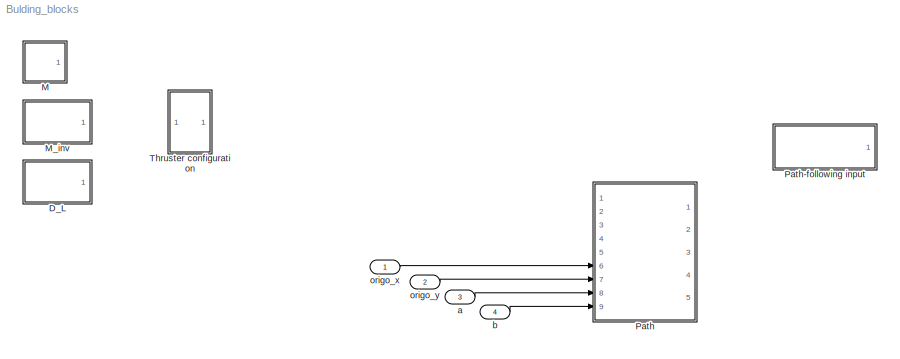
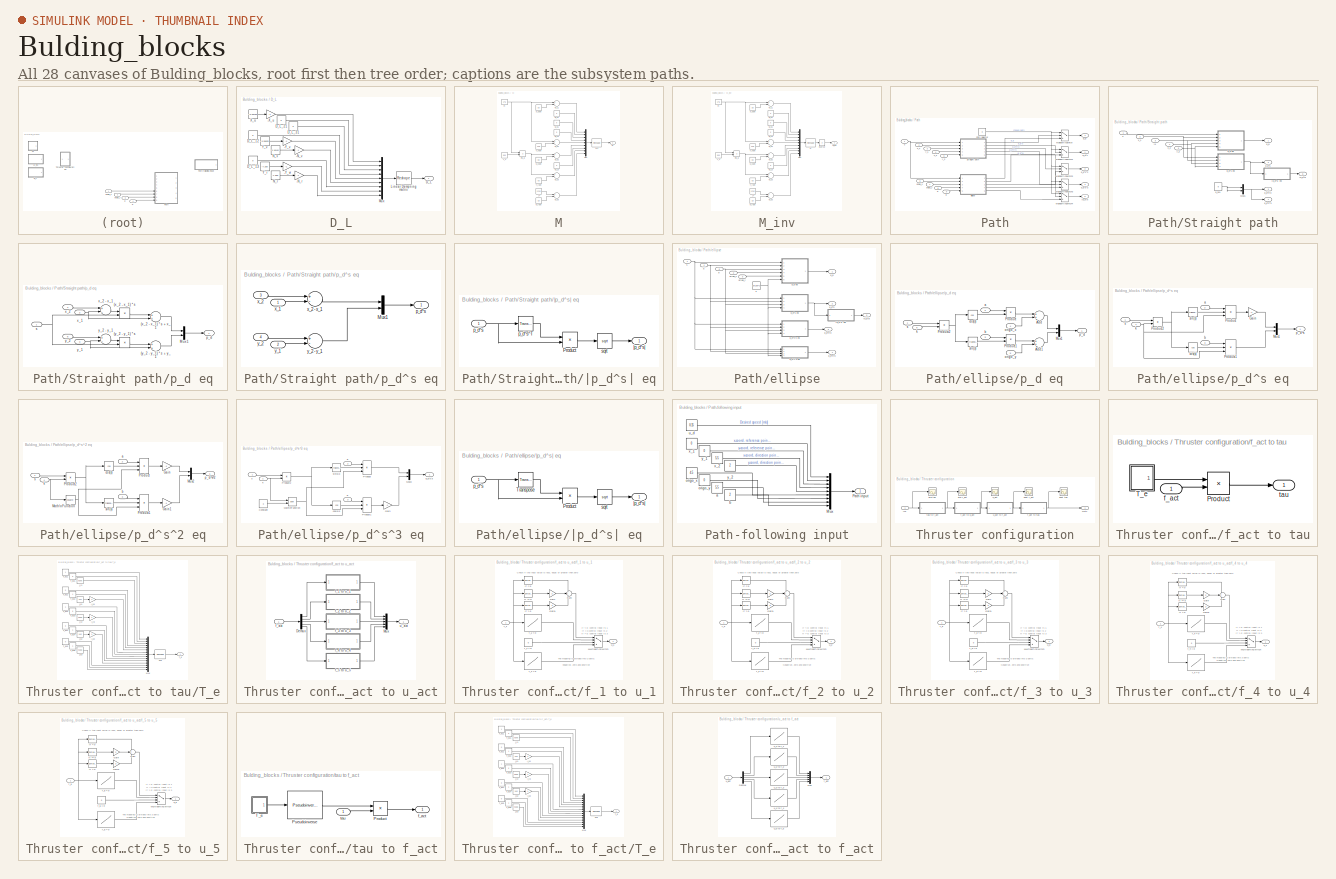
[diagram: thumbnail index - all 28 canvases of the model, root first then tree order]
MODEL Bulding_blocks
KIND model
BLOCK [SubSystem] D_L
  FunctionWithSeparateData = off
  MaskHideContents = off
  MinAlgLoopOccurrences = off
  Opaque = off
  Ports = [0, 1]
  PropExecContextOutsideSubsystem = off
  RTWSystemCode = Auto
  RequestExecContextInheritance = off
BLOCK [Gain] D_L/-N_r
  Gain = -1
  OutDataType = fixdt(1, 16)
  OutDataTypeMode = Inherit via internal rule
  OutDataTypeStr = Inherit: Inherit via internal rule
  OutScaling = 2^0
  ParamDataTypeStr = Inherit: Inherit via internal rule
  ParameterDataType = fixdt(1, 16)
  ParameterDataTypeMode = Inherit via internal rule
  ParameterScaling = 2^0
  SaturateOnIntegerOverflow = off
BLOCK [Gain] D_L/-N_v
  Gain = -1
  OutDataType = fixdt(1, 16)
  OutDataTypeMode = Inherit via internal rule
  OutDataTypeStr = Inherit: Inherit via internal rule
  OutScaling = 2^0
  ParamDataTypeStr = Inherit: Inherit via internal rule
  ParameterDataType = fixdt(1, 16)
  ParameterDataTypeMode = Inherit via internal rule
  ParameterScaling = 2^0
  SaturateOnIntegerOverflow = off
BLOCK [Gain] D_L/-X_u
  Gain = -1
  OutDataType = fixdt(1, 16)
  OutDataTypeMode = Inherit via internal rule
  OutDataTypeStr = Inherit: Inherit via internal rule
  OutScaling = 2^0
  ParamDataTypeStr = Inherit: Inherit via internal rule
  ParameterDataType = fixdt(1, 16)
  ParameterDataTypeMode = Inherit via internal rule
  ParameterScaling = 2^0
  SaturateOnIntegerOverflow = off
BLOCK [Gain] D_L/-Y_v
  Gain = -1
  OutDataType = fixdt(1, 16)
  OutDataTypeMode = Inherit via internal rule
  OutDataTypeStr = Inherit: Inherit via internal rule
  OutScaling = 2^0
  ParamDataTypeStr = Inherit: Inherit via internal rule
  ParameterDataType = fixdt(1, 16)
  ParameterDataTypeMode = Inherit via internal rule
  ParameterScaling = 2^0
  SaturateOnIntegerOverflow = off
BLOCK [Gain] D_L/-Y_vr
  Gain = -1
  OutDataType = fixdt(1, 16)
  OutDataTypeMode = Inherit via internal rule
  OutDataTypeStr = Inherit: Inherit via internal rule
  OutScaling = 2^0
  ParamDataTypeStr = Inherit: Inherit via internal rule
  ParameterDataType = fixdt(1, 16)
  ParameterDataTypeMode = Inherit via internal rule
  ParameterScaling = 2^0
  SaturateOnIntegerOverflow = off
BLOCK [Outport] D_L/D_L
  IconDisplay = Port number
BLOCK [Constant] D_L/D_L_12
  Value = 0
BLOCK [Constant] D_L/D_L_13
  Value = 0
BLOCK [Constant] D_L/D_L_21
  Value = 0
BLOCK [Constant] D_L/D_L_31
  Value = 0
BLOCK [Reshape] D_L/Linear Dampning matrix
  OutputDimensionality = Customize
  OutputDimensions = [3,3]
  Ports = [1, 1]
BLOCK [Mux] D_L/Mux
  DisplayOption = bar
  Inputs = 9
  Ports = [9, 1]
BLOCK [Constant] D_L/N_r
  Value = -1.900
BLOCK [Constant] D_L/N_v
  Value = 0.18140
BLOCK [Constant] D_L/X_u
  Value = -0.59739
BLOCK [Constant] D_L/Y_r
  Value = -7.250
BLOCK [Constant] D_L/Y_v
  Value = -3.50625
BLOCK [SubSystem] M
  FunctionWithSeparateData = off
  MaskHideContents = off
  MinAlgLoopOccurrences = off
  Opaque = off
  Ports = [0, 1]
  PropExecContextOutsideSubsystem = off
  RTWSystemCode = Auto
  RequestExecContextInheritance = off
BLOCK [Reshape] M/3x3
  OutputDimensionality = Customize
  OutputDimensions = [3,3]
  Ports = [1, 1]
BLOCK [Constant] M/I_z
  Value = 1.760
BLOCK [Outport] M/M
  IconDisplay = Port number
BLOCK [Sum] M/M_11
  InputSameDT = off
  Inputs = +-
  OutDataTypeMode = Inherit via internal rule
  OutDataTypeStr = Inherit: Inherit via internal rule
  Ports = [2, 1]
  SaturateOnIntegerOverflow = off
BLOCK [Constant] M/M_12
  Value = 0
BLOCK [Constant] M/M_13
  Value = 0
BLOCK [Constant] M/M_21
  Value = 0
BLOCK [Sum] M/M_22
  InputSameDT = off
  Inputs = +-
  OutDataTypeMode = Inherit via internal rule
  OutDataTypeStr = Inherit: Inherit via internal rule
  Ports = [2, 1]
  SaturateOnIntegerOverflow = off
BLOCK [Sum] M/M_23
  InputSameDT = off
  Inputs = +-
  OutDataTypeMode = Inherit via internal rule
  OutDataTypeStr = Inherit: Inherit via internal rule
  Ports = [2, 1]
  SaturateOnIntegerOverflow = off
BLOCK [Constant] M/M_31
  Value = 0
BLOCK [Sum] M/M_32
  InputSameDT = off
  Inputs = +-
  OutDataTypeMode = Inherit via internal rule
  OutDataTypeStr = Inherit: Inherit via internal rule
  Ports = [2, 1]
  SaturateOnIntegerOverflow = off
BLOCK [Sum] M/M_33
  InputSameDT = off
  Inputs = +-
  OutDataTypeMode = Inherit via internal rule
  OutDataTypeStr = Inherit: Inherit via internal rule
  Ports = [2, 1]
  SaturateOnIntegerOverflow = off
BLOCK [Mux] M/Mux
  DisplayOption = bar
  Inputs = 9
  Ports = [9, 1]
BLOCK [Constant] M/N_rdot
  Value = -1.0
BLOCK [Constant] M/N_vdot
  Value = -0.0
BLOCK [Constant] M/X_udot
  Value = -2.0
BLOCK [Constant] M/Y_rdot
  Value = 0.0
BLOCK [Constant] M/Y_vdot
  Value = -10.0
BLOCK [Constant] M/m
  Value = 17.6
BLOCK [Product] M/m x_g
  InputSameDT = off
  OutDataTypeMode = Inherit via internal rule
  OutDataTypeStr = Inherit: Inherit via internal rule
  Ports = [2, 1]
  SaturateOnIntegerOverflow = off
BLOCK [Constant] M/x_g
  Value = 0.03
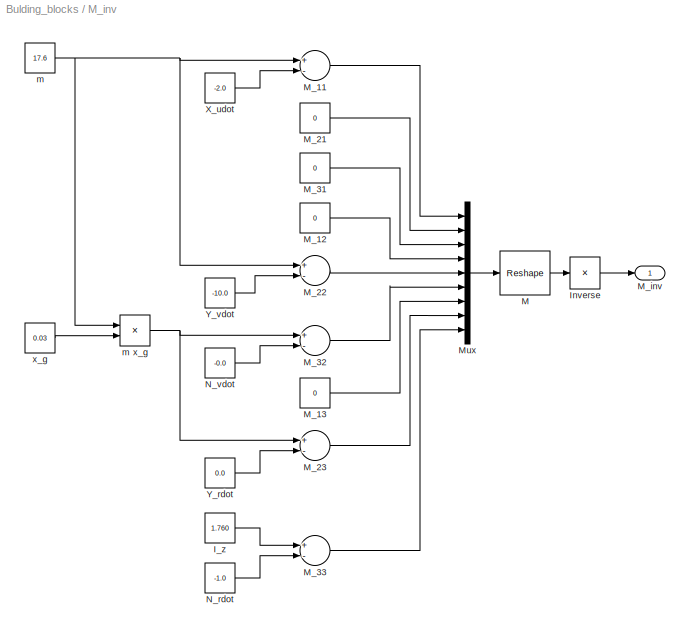
BLOCK [SubSystem] M_inv
  FunctionWithSeparateData = off
  MaskHideContents = off
  MinAlgLoopOccurrences = off
  Opaque = off
  Ports = [0, 1]
  PropExecContextOutsideSubsystem = off
  RTWSystemCode = Auto
  RequestExecContextInheritance = off
BLOCK [Constant] M_inv/I_z
  Value = 1.760
BLOCK [Product] M_inv/Inverse
  InputSameDT = off
  Inputs = /
  Multiplication = Matrix(*)
  OutDataTypeMode = Inherit via internal rule
  OutDataTypeStr = Inherit: Inherit via internal rule
  Ports = [1, 1]
  RndMeth = Floor
  SaturateOnIntegerOverflow = off
BLOCK [Reshape] M_inv/M
  OutputDimensionality = Customize
  OutputDimensions = [3,3]
  Ports = [1, 1]
BLOCK [Sum] M_inv/M_11
  InputSameDT = off
  Inputs = +-
  OutDataTypeMode = Inherit via internal rule
  OutDataTypeStr = Inherit: Inherit via internal rule
  Ports = [2, 1]
  SaturateOnIntegerOverflow = off
BLOCK [Constant] M_inv/M_12
  Value = 0
BLOCK [Constant] M_inv/M_13
  Value = 0
BLOCK [Constant] M_inv/M_21
  Value = 0
BLOCK [Sum] M_inv/M_22
  InputSameDT = off
  Inputs = +-
  OutDataTypeMode = Inherit via internal rule
  OutDataTypeStr = Inherit: Inherit via internal rule
  Ports = [2, 1]
  SaturateOnIntegerOverflow = off
BLOCK [Sum] M_inv/M_23
  InputSameDT = off
  Inputs = +-
  OutDataTypeMode = Inherit via internal rule
  OutDataTypeStr = Inherit: Inherit via internal rule
  Ports = [2, 1]
  SaturateOnIntegerOverflow = off
BLOCK [Constant] M_inv/M_31
  Value = 0
BLOCK [Sum] M_inv/M_32
  InputSameDT = off
  Inputs = +-
  OutDataTypeMode = Inherit via internal rule
  OutDataTypeStr = Inherit: Inherit via internal rule
  Ports = [2, 1]
  SaturateOnIntegerOverflow = off
BLOCK [Sum] M_inv/M_33
  InputSameDT = off
  Inputs = +-
  OutDataTypeMode = Inherit via internal rule
  OutDataTypeStr = Inherit: Inherit via internal rule
  Ports = [2, 1]
  SaturateOnIntegerOverflow = off
BLOCK [Outport] M_inv/M_inv
  IconDisplay = Port number
BLOCK [Mux] M_inv/Mux
  DisplayOption = bar
  Inputs = 9
  Ports = [9, 1]
BLOCK [Constant] M_inv/N_rdot
  Value = -1.0
BLOCK [Constant] M_inv/N_vdot
  Value = -0.0
BLOCK [Constant] M_inv/X_udot
  Value = -2.0
BLOCK [Constant] M_inv/Y_rdot
  Value = 0.0
BLOCK [Constant] M_inv/Y_vdot
  Value = -10.0
BLOCK [Constant] M_inv/m
  Value = 17.6
BLOCK [Product] M_inv/m x_g
  InputSameDT = off
  OutDataTypeMode = Inherit via internal rule
  OutDataTypeStr = Inherit: Inherit via internal rule
  Ports = [2, 1]
  SaturateOnIntegerOverflow = off
BLOCK [Constant] M_inv/x_g
  Value = 0.03
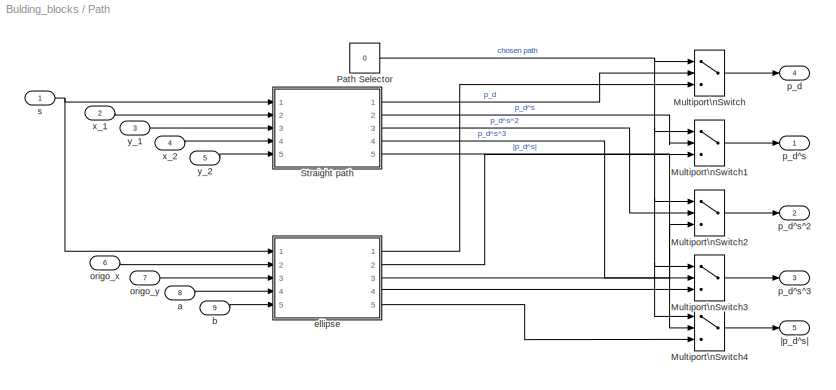
BLOCK [SubSystem] Path
  FunctionWithSeparateData = off
  MaskHideContents = off
  MinAlgLoopOccurrences = off
  Opaque = off
  Ports = [9, 5]
  PropExecContextOutsideSubsystem = off
  RTWSystemCode = Auto
  RequestExecContextInheritance = off
BLOCK [SubSystem] Path-following input
  FunctionWithSeparateData = off
  MaskHideContents = off
  MinAlgLoopOccurrences = off
  Opaque = off
  Ports = [0, 1]
  PropExecContextOutsideSubsystem = off
  RTWSystemCode = Auto
  RequestExecContextInheritance = off
BLOCK [Mux] Path-following input/Mux
  DisplayOption = bar
  Inputs = 9
  Ports = [9, 1]
BLOCK [Outport] Path-following input/Path input
  IconDisplay = Port number
BLOCK [Constant] Path-following input/a
  OutDataType = fixdt(1, 16)
  OutScaling = 2^0
  Value = 5.5
BLOCK [Constant] Path-following input/b
  OutDataType = fixdt(1, 16)
  OutScaling = 2^0
  Value = 2
BLOCK [Constant] Path-following input/origo_x
  OutDataType = fixdt(1, 16)
  OutScaling = 2^0
  Value = 4.5
BLOCK [Constant] Path-following input/origo_y
  OutDataType = fixdt(1, 16)
  OutScaling = 2^0
  Value = 0
BLOCK [Constant] Path-following input/u_d
  OutDataType = fixdt(1, 16)
  OutScaling = 2^0
  Value = 0.15
BLOCK [Constant] Path-following input/x_1
  OutDataType = fixdt(1, 16)
  OutScaling = 2^0
  Value = 0
BLOCK [Constant] Path-following input/x_2
  OutDataType = fixdt(1, 16)
  OutScaling = 2^0
  Value = 5.5
BLOCK [Constant] Path-following input/y_1
  OutDataType = fixdt(1, 16)
  OutScaling = 2^0
  Value = 0
BLOCK [Constant] Path-following input/y_2
  OutDataType = fixdt(1, 16)
  OutScaling = 2^0
  Value = 2
BLOCK [MultiPortSwitch] Path/Multiport\nSwitch
  InputSameDT = off
  Inputs = 2
  OutDataType = fixdt(1, 16)
  OutScaling = 2^0
  Ports = [3, 1]
  zeroidx = on
BLOCK [MultiPortSwitch] Path/Multiport\nSwitch1
  InputSameDT = off
  Inputs = 2
  OutDataType = fixdt(1, 16)
  OutScaling = 2^0
  Ports = [3, 1]
  zeroidx = on
BLOCK [MultiPortSwitch] Path/Multiport\nSwitch2
  InputSameDT = off
  Inputs = 2
  OutDataType = fixdt(1, 16)
  OutScaling = 2^0
  Ports = [3, 1]
  zeroidx = on
BLOCK [MultiPortSwitch] Path/Multiport\nSwitch3
  InputSameDT = off
  Inputs = 2
  OutDataType = fixdt(1, 16)
  OutScaling = 2^0
  Ports = [3, 1]
  zeroidx = on
BLOCK [MultiPortSwitch] Path/Multiport\nSwitch4
  InputSameDT = off
  Inputs = 2
  OutDataType = fixdt(1, 16)
  OutScaling = 2^0
  Ports = [3, 1]
  zeroidx = on
BLOCK [Constant] Path/Path Selector
  Value = 0
BLOCK [SubSystem] Path/Straight path
  FunctionWithSeparateData = off
  MaskHideContents = off
  MinAlgLoopOccurrences = off
  Opaque = off
  Ports = [5, 5]
  PropExecContextOutsideSubsystem = off
  RTWSystemCode = Auto
  RequestExecContextInheritance = off
BLOCK [Constant] Path/Straight path/0_2x1
  OutDataType = fixdt(1, 16)
  OutScaling = 2^0
  Value = 0
  VectorParams1D = off
BLOCK [Mux] Path/Straight path/Mux1
  DisplayOption = bar
  Inputs = 2
  Ports = [2, 1]
BLOCK [Outport] Path/Straight path/p_d
  IconDisplay = Port number
BLOCK [SubSystem] Path/Straight path/p_d eq
  FunctionWithSeparateData = off
  MaskHideContents = off
  MinAlgLoopOccurrences = off
  Opaque = off
  Ports = [5, 1]
  PropExecContextOutsideSubsystem = off
  RTWSystemCode = Auto
  RequestExecContextInheritance = off
BLOCK [Product] Path/Straight path/p_d eq/(x_2 - x_1) * s
  InputSameDT = off
  OutDataType = fixdt(1, 16)
  OutDataTypeMode = Inherit via internal rule
  OutDataTypeStr = Inherit: Inherit via internal rule
  OutScaling = 2^0
  Ports = [2, 1]
  SaturateOnIntegerOverflow = off
BLOCK [Sum] Path/Straight path/p_d eq/(x_2 - x_1) * s + x_1
  InputSameDT = off
  OutDataType = fixdt(1, 16)
  OutDataTypeMode = Inherit via internal rule
  OutDataTypeStr = Inherit: Inherit via internal rule
  OutScaling = 2^-10
  Ports = [2, 1]
  SaturateOnIntegerOverflow = off
BLOCK [Product] Path/Straight path/p_d eq/(y_2 - y_1) * s
  InputSameDT = off
  OutDataType = fixdt(1, 16)
  OutDataTypeMode = Inherit via internal rule
  OutDataTypeStr = Inherit: Inherit via internal rule
  OutScaling = 2^0
  Ports = [2, 1]
  SaturateOnIntegerOverflow = off
BLOCK [Sum] Path/Straight path/p_d eq/(y_2 - y_1) * s + y_1
  InputSameDT = off
  OutDataType = fixdt(1, 16)
  OutDataTypeMode = Inherit via internal rule
  OutDataTypeStr = Inherit: Inherit via internal rule
  OutScaling = 2^-10
  Ports = [2, 1]
  SaturateOnIntegerOverflow = off
BLOCK [Mux] Path/Straight path/p_d eq/Mux1
  DisplayOption = bar
  Inputs = 2
  Ports = [2, 1]
BLOCK [Outport] Path/Straight path/p_d eq/p_d
  IconDisplay = Port number
BLOCK [Inport] Path/Straight path/p_d eq/s
  IconDisplay = Port number
BLOCK [Inport] Path/Straight path/p_d eq/x_1
  IconDisplay = Port number
  Port = 2
BLOCK [Inport] Path/Straight path/p_d eq/x_2
  IconDisplay = Port number
  Port = 4
BLOCK [Sum] Path/Straight path/p_d eq/x_2 - x_1
  InputSameDT = off
  Inputs = +-
  OutDataType = fixdt(1, 16)
  OutDataTypeMode = Inherit via internal rule
  OutDataTypeStr = Inherit: Inherit via internal rule
  OutScaling = 2^-10
  Ports = [2, 1]
  SaturateOnIntegerOverflow = off
BLOCK [Inport] Path/Straight path/p_d eq/y_1
  IconDisplay = Port number
  Port = 3
BLOCK [Inport] Path/Straight path/p_d eq/y_2
  IconDisplay = Port number
  Port = 5
BLOCK [Sum] Path/Straight path/p_d eq/y_2 - y_1
  InputSameDT = off
  Inputs = +-
  OutDataType = fixdt(1, 16)
  OutDataTypeMode = Inherit via internal rule
  OutDataTypeStr = Inherit: Inherit via internal rule
  OutScaling = 2^-10
  Ports = [2, 1]
  SaturateOnIntegerOverflow = off
BLOCK [Outport] Path/Straight path/p_d^s
  IconDisplay = Port number
  Port = 2
BLOCK [SubSystem] Path/Straight path/p_d^s eq
  FunctionWithSeparateData = off
  MaskHideContents = off
  MinAlgLoopOccurrences = off
  Opaque = off
  Ports = [4, 1]
  PropExecContextOutsideSubsystem = off
  RTWSystemCode = Auto
  RequestExecContextInheritance = off
BLOCK [Mux] Path/Straight path/p_d^s eq/Mux1
  DisplayOption = bar
  Inputs = 2
  Ports = [2, 1]
BLOCK [Outport] Path/Straight path/p_d^s eq/p_d^s
  IconDisplay = Port number
BLOCK [Inport] Path/Straight path/p_d^s eq/x_1
  IconDisplay = Port number
BLOCK [Inport] Path/Straight path/p_d^s eq/x_2
  IconDisplay = Port number
  Port = 3
BLOCK [Sum] Path/Straight path/p_d^s eq/x_2 - x_1
  InputSameDT = off
  Inputs = +-
  OutDataType = fixdt(1, 16)
  OutDataTypeMode = Inherit via internal rule
  OutDataTypeStr = Inherit: Inherit via internal rule
  OutScaling = 2^-10
  Ports = [2, 1]
  SaturateOnIntegerOverflow = off
BLOCK [Inport] Path/Straight path/p_d^s eq/y_1
  IconDisplay = Port number
  Port = 2
BLOCK [Inport] Path/Straight path/p_d^s eq/y_2
  IconDisplay = Port number
  Port = 4
BLOCK [Sum] Path/Straight path/p_d^s eq/y_2 - y_1
  InputSameDT = off
  Inputs = +-
  OutDataType = fixdt(1, 16)
  OutDataTypeMode = Inherit via internal rule
  OutDataTypeStr = Inherit: Inherit via internal rule
  OutScaling = 2^-10
  Ports = [2, 1]
  SaturateOnIntegerOverflow = off
BLOCK [Outport] Path/Straight path/p_d^s^2
  IconDisplay = Port number
  Port = 3
BLOCK [Outport] Path/Straight path/p_d^s^3
  IconDisplay = Port number
  Port = 4
BLOCK [Inport] Path/Straight path/s
  IconDisplay = Port number
BLOCK [Inport] Path/Straight path/x_1
  IconDisplay = Port number
  Port = 2
BLOCK [Inport] Path/Straight path/x_2
  IconDisplay = Port number
  Port = 4
BLOCK [Inport] Path/Straight path/y1
  IconDisplay = Port number
  Port = 3
BLOCK [Inport] Path/Straight path/y_2
  IconDisplay = Port number
  Port = 5
BLOCK [Outport] Path/Straight path/|p_d^s|
  IconDisplay = Port number
  Port = 5
BLOCK [SubSystem] Path/Straight path/|p_d^s| eq
  FunctionWithSeparateData = off
  MaskHideContents = off
  MinAlgLoopOccurrences = off
  Opaque = off
  Ports = [1, 1]
  PropExecContextOutsideSubsystem = off
  RTWSystemCode = Auto
  RequestExecContextInheritance = off
BLOCK [Product] Path/Straight path/|p_d^s| eq/Product
  InputSameDT = off
  Multiplication = Matrix(*)
  OutDataType = fixdt(1, 16)
  OutDataTypeMode = Inherit via internal rule
  OutDataTypeStr = Inherit: Inherit via internal rule
  OutScaling = 2^0
  Ports = [2, 1]
  SaturateOnIntegerOverflow = off
BLOCK [Inport] Path/Straight path/|p_d^s| eq/p_d^s
  IconDisplay = Port number
BLOCK [Reference] Path/Straight path/|p_d^s| eq/p_d^s^T  REF=dspmtrx3/Transpose
  FunctionWithSeparateData = off
  Hermitian = off
  Ports = [1, 1]
  RTWMemSecDataConstants = Inherit from model
  RTWMemSecDataInternal = Inherit from model
  RTWMemSecDataParameters = Inherit from model
  RTWMemSecFuncExecute = Inherit from model
  RTWMemSecFuncInitTerm = Inherit from model
  ShowPortLabels = FromPortIcon
  SourceBlock = dspmtrx3/Transpose
  SourceType = Transpose
  SystemSampleTime = -1
  overflowFlag = off
BLOCK [Math] Path/Straight path/|p_d^s| eq/sqrt
  Operator = sqrt
  OutDataType = fixdt(1, 16)
  OutScaling = 2^0
  Ports = [1, 1]
BLOCK [Outport] Path/Straight path/|p_d^s| eq/|p_d^s|
  IconDisplay = Port number
BLOCK [Inport] Path/a
  IconDisplay = Port number
  Port = 8
BLOCK [Inport] Path/b
  IconDisplay = Port number
  Port = 9
BLOCK [SubSystem] Path/ellipse
  FunctionWithSeparateData = off
  MaskHideContents = off
  MinAlgLoopOccurrences = off
  Opaque = off
  Ports = [5, 5]
  PropExecContextOutsideSubsystem = off
  RTWSystemCode = Auto
  RequestExecContextInheritance = off
BLOCK [Inport] Path/ellipse/a
  IconDisplay = Port number
  Port = 4
BLOCK [Inport] Path/ellipse/b
  IconDisplay = Port number
  Port = 5
BLOCK [Constant] Path/ellipse/k
  OutDataType = fixdt(1, 16)
  OutScaling = 2^0
  Value = pi/180*2
BLOCK [Inport] Path/ellipse/origo_x
  IconDisplay = Port number
  Port = 2
BLOCK [Inport] Path/ellipse/origo_y
  IconDisplay = Port number
  Port = 3
BLOCK [Outport] Path/ellipse/p_d
  IconDisplay = Port number
BLOCK [SubSystem] Path/ellipse/p_d eq
  FunctionWithSeparateData = off
  MaskHideContents = off
  MinAlgLoopOccurrences = off
  Opaque = off
  Ports = [6, 1]
  PropExecContextOutsideSubsystem = off
  RTWSystemCode = Auto
  RequestExecContextInheritance = off
BLOCK [Sum] Path/ellipse/p_d eq/Add
  InputSameDT = off
  OutDataType = fixdt(1, 16)
  OutDataTypeMode = Inherit via internal rule
  OutDataTypeStr = Inherit: Inherit via internal rule
  OutScaling = 2^-10
  Ports = [2, 1]
  SaturateOnIntegerOverflow = off
BLOCK [Sum] Path/ellipse/p_d eq/Add1
  InputSameDT = off
  OutDataType = fixdt(1, 16)
  OutDataTypeMode = Inherit via internal rule
  OutDataTypeStr = Inherit: Inherit via internal rule
  OutScaling = 2^-10
  Ports = [2, 1]
  SaturateOnIntegerOverflow = off
BLOCK [Mux] Path/ellipse/p_d eq/Mux1
  DisplayOption = bar
  Inputs = 2
  Ports = [2, 1]
BLOCK [Product] Path/ellipse/p_d eq/Product
  InputSameDT = off
  OutDataType = fixdt(1, 16)
  OutDataTypeMode = Inherit via internal rule
  OutDataTypeStr = Inherit: Inherit via internal rule
  OutScaling = 2^0
  Ports = [2, 1]
  SaturateOnIntegerOverflow = off
BLOCK [Product] Path/ellipse/p_d eq/Product1
  InputSameDT = off
  OutDataType = fixdt(1, 16)
  OutDataTypeMode = Inherit via internal rule
  OutDataTypeStr = Inherit: Inherit via internal rule
  OutScaling = 2^0
  Ports = [2, 1]
  SaturateOnIntegerOverflow = off
BLOCK [Product] Path/ellipse/p_d eq/Product2
  InputSameDT = off
  OutDataType = fixdt(1, 16)
  OutDataTypeMode = Inherit via internal rule
  OutDataTypeStr = Inherit: Inherit via internal rule
  OutScaling = 2^0
  Ports = [2, 1]
  SaturateOnIntegerOverflow = off
BLOCK [Inport] Path/ellipse/p_d eq/a
  IconDisplay = Port number
  Port = 2
BLOCK [Inport] Path/ellipse/p_d eq/b
  IconDisplay = Port number
  Port = 3
BLOCK [Trigonometry] Path/ellipse/p_d eq/cos(s)
  Operator = cos
  Ports = [1, 1]
BLOCK [Inport] Path/ellipse/p_d eq/k
  IconDisplay = Port number
  Port = 6
BLOCK [Inport] Path/ellipse/p_d eq/origo_x
  IconDisplay = Port number
  Port = 4
BLOCK [Inport] Path/ellipse/p_d eq/origo_y
  IconDisplay = Port number
  Port = 5
BLOCK [Outport] Path/ellipse/p_d eq/p_d
  IconDisplay = Port number
BLOCK [Inport] Path/ellipse/p_d eq/s
  IconDisplay = Port number
BLOCK [Trigonometry] Path/ellipse/p_d eq/sin(s)
  Ports = [1, 1]
BLOCK [Outport] Path/ellipse/p_d^s
  IconDisplay = Port number
  Port = 2
BLOCK [SubSystem] Path/ellipse/p_d^s eq
  FunctionWithSeparateData = off
  MaskHideContents = off
  MinAlgLoopOccurrences = off
  Opaque = off
  Ports = [4, 1]
  PropExecContextOutsideSubsystem = off
  RTWSystemCode = Auto
  RequestExecContextInheritance = off
BLOCK [Gain] Path/ellipse/p_d^s eq/Gain
  Gain = -1
  OutDataType = fixdt(1, 16)
  OutDataTypeMode = Inherit via internal rule
  OutDataTypeStr = Inherit: Inherit via internal rule
  OutScaling = 2^0
  ParamDataTypeStr = Inherit: Inherit via internal rule
  ParameterDataType = fixdt(1, 16)
  ParameterDataTypeMode = Inherit via internal rule
  ParameterScaling = 2^0
  SaturateOnIntegerOverflow = off
BLOCK [Mux] Path/ellipse/p_d^s eq/Mux1
  DisplayOption = bar
  Inputs = 2
  Ports = [2, 1]
BLOCK [Product] Path/ellipse/p_d^s eq/Product
  InputSameDT = off
  Inputs = 3
  OutDataType = fixdt(1, 16)
  OutDataTypeMode = Inherit via internal rule
  OutDataTypeStr = Inherit: Inherit via internal rule
  OutScaling = 2^0
  Ports = [3, 1]
  SaturateOnIntegerOverflow = off
BLOCK [Product] Path/ellipse/p_d^s eq/Product1
  InputSameDT = off
  Inputs = 3
  OutDataType = fixdt(1, 16)
  OutDataTypeMode = Inherit via internal rule
  OutDataTypeStr = Inherit: Inherit via internal rule
  OutScaling = 2^0
  Ports = [3, 1]
  SaturateOnIntegerOverflow = off
BLOCK [Product] Path/ellipse/p_d^s eq/Product2
  InputSameDT = off
  OutDataType = fixdt(1, 16)
  OutDataTypeMode = Inherit via internal rule
  OutDataTypeStr = Inherit: Inherit via internal rule
  OutScaling = 2^0
  Ports = [2, 1]
  SaturateOnIntegerOverflow = off
BLOCK [Inport] Path/ellipse/p_d^s eq/a
  IconDisplay = Port number
  Port = 2
BLOCK [Inport] Path/ellipse/p_d^s eq/b
  IconDisplay = Port number
  Port = 3
BLOCK [Trigonometry] Path/ellipse/p_d^s eq/cos(s)
  Operator = cos
  Ports = [1, 1]
BLOCK [Inport] Path/ellipse/p_d^s eq/k
  IconDisplay = Port number
  Port = 4
BLOCK [Outport] Path/ellipse/p_d^s eq/p_d^s
  IconDisplay = Port number
BLOCK [Inport] Path/ellipse/p_d^s eq/s
  IconDisplay = Port number
BLOCK [Trigonometry] Path/ellipse/p_d^s eq/sin(s)
  Ports = [1, 1]
BLOCK [Outport] Path/ellipse/p_d^s^2
  IconDisplay = Port number
  Port = 3
BLOCK [SubSystem] Path/ellipse/p_d^s^2 eq
  FunctionWithSeparateData = off
  MaskHideContents = off
  MinAlgLoopOccurrences = off
  Opaque = off
  Ports = [4, 1]
  PropExecContextOutsideSubsystem = off
  RTWSystemCode = Auto
  RequestExecContextInheritance = off
BLOCK [Gain] Path/ellipse/p_d^s^2 eq/Gain
  Gain = -1
  OutDataType = fixdt(1, 16)
  OutDataTypeMode = Inherit via internal rule
  OutDataTypeStr = Inherit: Inherit via internal rule
  OutScaling = 2^0
  ParamDataTypeStr = Inherit: Inherit via internal rule
  ParameterDataType = fixdt(1, 16)
  ParameterDataTypeMode = Inherit via internal rule
  ParameterScaling = 2^0
  SaturateOnIntegerOverflow = off
BLOCK [Gain] Path/ellipse/p_d^s^2 eq/Gain1
  Gain = -1
  OutDataType = fixdt(1, 16)
  OutDataTypeMode = Inherit via internal rule
  OutDataTypeStr = Inherit: Inherit via internal rule
  OutScaling = 2^0
  ParamDataTypeStr = Inherit: Inherit via internal rule
  ParameterDataType = fixdt(1, 16)
  ParameterDataTypeMode = Inherit via internal rule
  ParameterScaling = 2^0
  SaturateOnIntegerOverflow = off
BLOCK [Math] Path/ellipse/p_d^s^2 eq/Math\nFunction
  Operator = square
  OutDataType = fixdt(1, 16)
  OutScaling = 2^0
  Ports = [1, 1]
BLOCK [Mux] Path/ellipse/p_d^s^2 eq/Mux2
  DisplayOption = bar
  Inputs = 2
  Ports = [2, 1]
BLOCK [Product] Path/ellipse/p_d^s^2 eq/Product
  InputSameDT = off
  Inputs = 3
  OutDataType = fixdt(1, 16)
  OutDataTypeMode = Inherit via internal rule
  OutDataTypeStr = Inherit: Inherit via internal rule
  OutScaling = 2^0
  Ports = [3, 1]
  SaturateOnIntegerOverflow = off
BLOCK [Product] Path/ellipse/p_d^s^2 eq/Product1
  InputSameDT = off
  Inputs = 3
  OutDataType = fixdt(1, 16)
  OutDataTypeMode = Inherit via internal rule
  OutDataTypeStr = Inherit: Inherit via internal rule
  OutScaling = 2^0
  Ports = [3, 1]
  SaturateOnIntegerOverflow = off
BLOCK [Product] Path/ellipse/p_d^s^2 eq/Product2
  InputSameDT = off
  OutDataType = fixdt(1, 16)
  OutDataTypeMode = Inherit via internal rule
  OutDataTypeStr = Inherit: Inherit via internal rule
  OutScaling = 2^0
  Ports = [2, 1]
  SaturateOnIntegerOverflow = off
BLOCK [Inport] Path/ellipse/p_d^s^2 eq/a
  IconDisplay = Port number
  Port = 2
BLOCK [Inport] Path/ellipse/p_d^s^2 eq/b
  IconDisplay = Port number
  Port = 3
BLOCK [Trigonometry] Path/ellipse/p_d^s^2 eq/cos(s)
  Operator = cos
  Ports = [1, 1]
BLOCK [Inport] Path/ellipse/p_d^s^2 eq/k
  IconDisplay = Port number
  Port = 4
BLOCK [Outport] Path/ellipse/p_d^s^2 eq/p_d^s^2
  IconDisplay = Port number
BLOCK [Inport] Path/ellipse/p_d^s^2 eq/s
  IconDisplay = Port number
BLOCK [Trigonometry] Path/ellipse/p_d^s^2 eq/sin(s)
  Ports = [1, 1]
BLOCK [Outport] Path/ellipse/p_d^s^3
  IconDisplay = Port number
  Port = 4
BLOCK [SubSystem] Path/ellipse/p_d^s^3 eq
  FunctionWithSeparateData = off
  MaskHideContents = off
  MinAlgLoopOccurrences = off
  Opaque = off
  Ports = [4, 1]
  PropExecContextOutsideSubsystem = off
  RTWSystemCode = Auto
  RequestExecContextInheritance = off
BLOCK [Constant] Path/ellipse/p_d^s^3 eq/Constant
  OutDataType = fixdt(1, 16)
  OutScaling = 2^0
  Value = 3
BLOCK [Gain] Path/ellipse/p_d^s^3 eq/Gain
  Gain = -1
  OutDataType = fixdt(1, 16)
  OutDataTypeMode = Inherit via internal rule
  OutDataTypeStr = Inherit: Inherit via internal rule
  OutScaling = 2^0
  ParamDataTypeStr = Inherit: Inherit via internal rule
  ParameterDataType = fixdt(1, 16)
  ParameterDataTypeMode = Inherit via internal rule
  ParameterScaling = 2^0
  SaturateOnIntegerOverflow = off
BLOCK [Math] Path/ellipse/p_d^s^3 eq/Math\nFunction
  Operator = pow
  OutDataType = fixdt(1, 16)
  OutScaling = 2^0
  Ports = [2, 1]
BLOCK [Mux] Path/ellipse/p_d^s^3 eq/Mux3
  DisplayOption = bar
  Inputs = 2
  Ports = [2, 1]
BLOCK [Product] Path/ellipse/p_d^s^3 eq/Product
  InputSameDT = off
  Inputs = 3
  OutDataType = fixdt(1, 16)
  OutDataTypeMode = Inherit via internal rule
  OutDataTypeStr = Inherit: Inherit via internal rule
  OutScaling = 2^0
  Ports = [3, 1]
  SaturateOnIntegerOverflow = off
BLOCK [Product] Path/ellipse/p_d^s^3 eq/Product1
  InputSameDT = off
  Inputs = 3
  OutDataType = fixdt(1, 16)
  OutDataTypeMode = Inherit via internal rule
  OutDataTypeStr = Inherit: Inherit via internal rule
  OutScaling = 2^0
  Ports = [3, 1]
  SaturateOnIntegerOverflow = off
BLOCK [Product] Path/ellipse/p_d^s^3 eq/Product2
  InputSameDT = off
  OutDataType = fixdt(1, 16)
  OutDataTypeMode = Inherit via internal rule
  OutDataTypeStr = Inherit: Inherit via internal rule
  OutScaling = 2^0
  Ports = [2, 1]
  SaturateOnIntegerOverflow = off
BLOCK [Inport] Path/ellipse/p_d^s^3 eq/a
  IconDisplay = Port number
  Port = 2
BLOCK [Inport] Path/ellipse/p_d^s^3 eq/b
  IconDisplay = Port number
  Port = 3
BLOCK [Trigonometry] Path/ellipse/p_d^s^3 eq/cos(s)3
  Operator = cos
  Ports = [1, 1]
BLOCK [Inport] Path/ellipse/p_d^s^3 eq/k
  IconDisplay = Port number
  Port = 4
BLOCK [Outport] Path/ellipse/p_d^s^3 eq/p_d^s^3
  IconDisplay = Port number
BLOCK [Inport] Path/ellipse/p_d^s^3 eq/s
  IconDisplay = Port number
BLOCK [Trigonometry] Path/ellipse/p_d^s^3 eq/sin(s)3
  Ports = [1, 1]
BLOCK [Inport] Path/ellipse/s
  IconDisplay = Port number
BLOCK [Outport] Path/ellipse/|p_d^s|
  IconDisplay = Port number
  Port = 5
BLOCK [SubSystem] Path/ellipse/|p_d^s| eq
  FunctionWithSeparateData = off
  MaskHideContents = off
  MinAlgLoopOccurrences = off
  Opaque = off
  Ports = [1, 1]
  PropExecContextOutsideSubsystem = off
  RTWSystemCode = Auto
  RequestExecContextInheritance = off
BLOCK [Product] Path/ellipse/|p_d^s| eq/Product
  InputSameDT = off
  Multiplication = Matrix(*)
  OutDataType = fixdt(1, 16)
  OutDataTypeMode = Inherit via internal rule
  OutDataTypeStr = Inherit: Inherit via internal rule
  OutScaling = 2^0
  Ports = [2, 1]
  SaturateOnIntegerOverflow = off
BLOCK [Reference] Path/ellipse/|p_d^s| eq/Transpose  REF=dspmtrx3/Transpose
  FunctionWithSeparateData = off
  Hermitian = off
  Ports = [1, 1]
  RTWMemSecDataConstants = Inherit from model
  RTWMemSecDataInternal = Inherit from model
  RTWMemSecDataParameters = Inherit from model
  RTWMemSecFuncExecute = Inherit from model
  RTWMemSecFuncInitTerm = Inherit from model
  ShowPortLabels = FromPortIcon
  SourceBlock = dspmtrx3/Transpose
  SourceType = Transpose
  SystemSampleTime = -1
  overflowFlag = off
BLOCK [Inport] Path/ellipse/|p_d^s| eq/p_d^s
  IconDisplay = Port number
BLOCK [Math] Path/ellipse/|p_d^s| eq/sqrt
  Operator = sqrt
  OutDataType = fixdt(1, 16)
  OutScaling = 2^0
  Ports = [1, 1]
BLOCK [Outport] Path/ellipse/|p_d^s| eq/|p_d^s|
  IconDisplay = Port number
BLOCK [Inport] Path/origo_x
  IconDisplay = Port number
  Port = 6
BLOCK [Inport] Path/origo_y
  IconDisplay = Port number
  Port = 7
BLOCK [Outport] Path/p_d
  IconDisplay = Port number
  Port = 4
BLOCK [Outport] Path/p_d^s
  IconDisplay = Port number
BLOCK [Outport] Path/p_d^s^2
  IconDisplay = Port number
  Port = 2
BLOCK [Outport] Path/p_d^s^3
  IconDisplay = Port number
  Port = 3
BLOCK [Inport] Path/s
  IconDisplay = Port number
BLOCK [Inport] Path/x_1
  IconDisplay = Port number
  Port = 2
BLOCK [Inport] Path/x_2
  IconDisplay = Port number
  Port = 4
BLOCK [Inport] Path/y_1
  IconDisplay = Port number
  Port = 3
BLOCK [Inport] Path/y_2
  IconDisplay = Port number
  Port = 5
BLOCK [Outport] Path/|p_d^s|
  IconDisplay = Port number
  Port = 5
BLOCK [SubSystem] Thruster configuration
  FunctionWithSeparateData = off
  MaskHideContents = off
  MinAlgLoopOccurrences = off
  Opaque = off
  Ports = [1, 1]
  PropExecContextOutsideSubsystem = off
  RTWSystemCode = Auto
  RequestExecContextInheritance = off
BLOCK [Scope] Thruster configuration/ pre f_act
  DataFormat = StructureWithTime
  Floating = off
  NumInputPorts = 1
  Ports = [1]
  SampleTime = 0
  SaveName = ScopeData6
  ZoomMode = yonly
BLOCK [Inport] Thruster configuration/In1
  IconDisplay = Port number
BLOCK [Outport] Thruster configuration/Out1
  IconDisplay = Port number
BLOCK [SubSystem] Thruster configuration/f_act to tau
  FunctionWithSeparateData = off
  MaskHideContents = off
  MinAlgLoopOccurrences = off
  Opaque = off
  Ports = [1, 1]
  PropExecContextOutsideSubsystem = off
  RTWSystemCode = Auto
  RequestExecContextInheritance = off
BLOCK [Product] Thruster configuration/f_act to tau/Product
  InputSameDT = off
  Multiplication = Matrix(*)
  OutDataType = fixdt(1, 16)
  OutDataTypeMode = Inherit via internal rule
  OutDataTypeStr = Inherit: Inherit via internal rule
  OutScaling = 2^0
  Ports = [2, 1]
  SaturateOnIntegerOverflow = off
BLOCK [SubSystem] Thruster configuration/f_act to tau/T_e
  FunctionWithSeparateData = off
  MaskHideContents = off
  MinAlgLoopOccurrences = off
  Opaque = off
  Ports = [0, 1]
  PropExecContextOutsideSubsystem = off
  RTWSystemCode = Auto
  RequestExecContextInheritance = off
BLOCK [Gain] Thruster configuration/f_act to tau/T_e/-l_x1
  Gain = -1
  OutDataTypeMode = Inherit via internal rule
  OutDataTypeStr = Inherit: Inherit via internal rule
  ParamDataTypeStr = Inherit: Inherit via internal rule
  ParameterDataTypeMode = Inherit via internal rule
  SaturateOnIntegerOverflow = off
BLOCK [Gain] Thruster configuration/f_act to tau/T_e/-l_x2
  Gain = -1
  OutDataTypeMode = Inherit via internal rule
  OutDataTypeStr = Inherit: Inherit via internal rule
  ParamDataTypeStr = Inherit: Inherit via internal rule
  ParameterDataTypeMode = Inherit via internal rule
  SaturateOnIntegerOverflow = off
BLOCK [Gain] Thruster configuration/f_act to tau/T_e/-l_y2
  Gain = -1
  OutDataTypeMode = Inherit via internal rule
  OutDataTypeStr = Inherit: Inherit via internal rule
  ParamDataTypeStr = Inherit: Inherit via internal rule
  ParameterDataTypeMode = Inherit via internal rule
  SaturateOnIntegerOverflow = off
BLOCK [Reshape] Thruster configuration/f_act to tau/T_e/3x5
  OutputDimensionality = Customize
  OutputDimensions = [3,5]
  Ports = [1, 1]
BLOCK [Mux] Thruster configuration/f_act to tau/T_e/Mux
  DisplayOption = bar
  Inputs = 15
  Ports = [15, 1]
BLOCK [Outport] Thruster configuration/f_act to tau/T_e/T_e
  IconDisplay = Port number
BLOCK [Constant] Thruster configuration/f_act to tau/T_e/T_e11
BLOCK [Constant] Thruster configuration/f_act to tau/T_e/T_e12
  Value = 0
BLOCK [Constant] Thruster configuration/f_act to tau/T_e/T_e13
BLOCK [Constant] Thruster configuration/f_act to tau/T_e/T_e14
  Value = 0
BLOCK [Constant] Thruster configuration/f_act to tau/T_e/T_e15
  Value = 0
BLOCK [Constant] Thruster configuration/f_act to tau/T_e/T_e21
  Value = 0
BLOCK [Constant] Thruster configuration/f_act to tau/T_e/T_e22
BLOCK [Constant] Thruster configuration/f_act to tau/T_e/T_e23
  Value = 0
BLOCK [Constant] Thruster configuration/f_act to tau/T_e/T_e24
BLOCK [Constant] Thruster configuration/f_act to tau/T_e/T_e25
BLOCK [Constant] Thruster configuration/f_act to tau/T_e/l_x1
  Value = 0.45
BLOCK [Constant] Thruster configuration/f_act to tau/T_e/l_x2
  Value = 0.45
BLOCK [Constant] Thruster configuration/f_act to tau/T_e/l_x3
  Value = 0.385
BLOCK [Constant] Thruster configuration/f_act to tau/T_e/l_y1
  Value = 0.055
BLOCK [Constant] Thruster configuration/f_act to tau/T_e/l_y2
  Value = 0.055
BLOCK [Inport] Thruster configuration/f_act to tau/f_act
  IconDisplay = Port number
BLOCK [Outport] Thruster configuration/f_act to tau/tau
  IconDisplay = Port number
BLOCK [SubSystem] Thruster configuration/f_act to u_act
  FunctionWithSeparateData = off
  MaskHideContents = off
  MinAlgLoopOccurrences = off
  Opaque = off
  Ports = [1, 1]
  PropExecContextOutsideSubsystem = off
  RTWSystemCode = Auto
  RequestExecContextInheritance = off
BLOCK [Demux] Thruster configuration/f_act to u_act/Demux
  DisplayOption = bar
  Outputs = 5
  Ports = [1, 5]
BLOCK [Mux] Thruster configuration/f_act to u_act/Mux
  DisplayOption = bar
  Inputs = 5
  Ports = [5, 1]
BLOCK [SubSystem] Thruster configuration/f_act to u_act/f_1 to u_1
  FunctionWithSeparateData = off
  MaskHideContents = off
  MinAlgLoopOccurrences = off
  Opaque = off
  Ports = [1, 1]
  PropExecContextOutsideSubsystem = off
  RTWSystemCode = Auto
  RequestExecContextInheritance = off
BLOCK [Gain] Thruster configuration/f_act to u_act/f_1 to u_1/Gain
  Gain = 2
  OutDataType = fixdt(1, 16)
  OutDataTypeMode = Inherit via internal rule
  OutDataTypeStr = Inherit: Inherit via internal rule
  OutScaling = 2^0
  ParamDataTypeStr = Inherit: Inherit via internal rule
  ParameterDataType = fixdt(1, 16)
  ParameterDataTypeMode = Inherit via internal rule
  ParameterScaling = 2^0
  SaturateOnIntegerOverflow = off
BLOCK [Gain] Thruster configuration/f_act to u_act/f_1 to u_1/Gain1
  Gain = 3
  OutDataType = fixdt(1, 16)
  OutDataTypeMode = Inherit via internal rule
  OutDataTypeStr = Inherit: Inherit via internal rule
  OutScaling = 2^0
  ParamDataTypeStr = Inherit: Inherit via internal rule
  ParameterDataType = fixdt(1, 16)
  ParameterDataTypeMode = Inherit via internal rule
  ParameterScaling = 2^0
  SaturateOnIntegerOverflow = off
BLOCK [Reference] Thruster configuration/f_act to u_act/f_1 to u_1/If < 0  REF=simulink/Logic and Bit\nOperations/Compare\nTo Constant
  FunctionWithSeparateData = off
  LogicOutDataTypeMode = uint8
  Ports = [1, 1]
  RTWMemSecDataConstants = Inherit from model
  RTWMemSecDataInternal = Inherit from model
  RTWMemSecDataParameters = Inherit from model
  RTWMemSecFuncExecute = Inherit from model
  RTWMemSecFuncInitTerm = Inherit from model
  ShowPortLabels = FromPortIcon
  SourceBlock = simulink/Logic and Bit\nOperations/Compare\nTo Constant
  SourceType = Compare To Constant
  SystemSampleTime = -1
  ZeroCross = on
  const = 0
  relop = <
BLOCK [Reference] Thruster configuration/f_act to u_act/f_1 to u_1/If > 0  REF=simulink/Logic and Bit\nOperations/Compare\nTo Constant
  FunctionWithSeparateData = off
  LogicOutDataTypeMode = uint8
  Ports = [1, 1]
  RTWMemSecDataConstants = Inherit from model
  RTWMemSecDataInternal = Inherit from model
  RTWMemSecDataParameters = Inherit from model
  RTWMemSecFuncExecute = Inherit from model
  RTWMemSecFuncInitTerm = Inherit from model
  ShowPortLabels = FromPortIcon
  SourceBlock = simulink/Logic and Bit\nOperations/Compare\nTo Constant
  SourceType = Compare To Constant
  SystemSampleTime = -1
  ZeroCross = on
  const = 0
  relop = >
BLOCK [MultiPortSwitch] Thruster configuration/f_act to u_act/f_1 to u_1/Multiport\nSwitch
  InputSameDT = off
  OutDataType = fixdt(1, 16)
  OutScaling = 2^0
  Ports = [4, 1]
  SaturateOnIntegerOverflow = off
BLOCK [Sum] Thruster configuration/f_act to u_act/f_1 to u_1/Sum
  IconShape = round
  InputSameDT = off
  Inputs = +++
  OutDataType = fixdt(1, 16)
  OutDataTypeMode = Inherit via internal rule
  OutDataTypeStr = Inherit: Inherit via internal rule
  OutScaling = 2^0
  Ports = [3, 1]
  SaturateOnIntegerOverflow = off
BLOCK [Inport] Thruster configuration/f_act to u_act/f_1 to u_1/f_1
  IconDisplay = Port number
BLOCK [Lookup] Thruster configuration/f_act to u_act/f_1 to u_1/f_1 < 0
  InputValues = [-1.324\n-1.169\n-0.919\n-0.703\n-0.535\n-0.292\n-0.165\n-0.060\n0]
  LookUpMeth = Interpolation-Use End Values
  OutDataType = fixdt(1, 16)
  OutScaling = 2^0
  SaturateOnIntegerOverflow = off
  Table = [-1.0000\n   -0.9000\n   -0.8000\n   -0.7000\n   -0.6000\n   -0.5000\n   -0.4000\n   -0.3000\n   -0.2089]
BLOCK [Constant] Thruster configuration/f_act to u_act/f_1 to u_1/f_1 = 0
  OutDataType = fixdt(1, 16)
  OutScaling = 2^0
  Value = 0
BLOCK [Lookup] Thruster configuration/f_act to u_act/f_1 to u_1/f_1 > 0
  InputValues = [0\n    0.0510\n    0.1530\n    0.3080\n    0.4800\n    0.6630\n    0.9110\n    1.0570\n    1.2210\n    1.3740]
  LookUpMeth = Interpolation-Use End Values
  OutDataType = fixdt(1, 16)
  OutScaling = 2^0
  SaturateOnIntegerOverflow = off
  Table = [0.0500\n    0.1000\n    0.2000\n    0.3000\n    0.4000\n    0.5000\n    0.6000\n    0.7000\n    0.8000\n    0.9000]
BLOCK [Reference] Thruster configuration/f_act to u_act/f_1 to u_1/if == 0  REF=simulink/Logic and Bit\nOperations/Compare\nTo Zero
  FunctionWithSeparateData = off
  LogicOutDataTypeMode = uint8
  Ports = [1, 1]
  RTWMemSecDataConstants = Inherit from model
  RTWMemSecDataInternal = Inherit from model
  RTWMemSecDataParameters = Inherit from model
  RTWMemSecFuncExecute = Inherit from model
  RTWMemSecFuncInitTerm = Inherit from model
  ShowPortLabels = FromPortIcon
  SourceBlock = simulink/Logic and Bit\nOperations/Compare\nTo Zero
  SourceType = Compare To Zero
  SystemSampleTime = -1
  ZeroCross = on
  relop = ==
BLOCK [Outport] Thruster configuration/f_act to u_act/f_1 to u_1/u_1
  IconDisplay = Port number
BLOCK [SubSystem] Thruster configuration/f_act to u_act/f_2 to u_2
  FunctionWithSeparateData = off
  MaskHideContents = off
  MinAlgLoopOccurrences = off
  Opaque = off
  Ports = [1, 1]
  PropExecContextOutsideSubsystem = off
  RTWSystemCode = Auto
  RequestExecContextInheritance = off
BLOCK [Gain] Thruster configuration/f_act to u_act/f_2 to u_2/Gain
  Gain = 2
  OutDataType = fixdt(1, 16)
  OutDataTypeMode = Inherit via internal rule
  OutDataTypeStr = Inherit: Inherit via internal rule
  OutScaling = 2^0
  ParamDataTypeStr = Inherit: Inherit via internal rule
  ParameterDataType = fixdt(1, 16)
  ParameterDataTypeMode = Inherit via internal rule
  ParameterScaling = 2^0
  SaturateOnIntegerOverflow = off
BLOCK [Gain] Thruster configuration/f_act to u_act/f_2 to u_2/Gain1
  Gain = 3
  OutDataType = fixdt(1, 16)
  OutDataTypeMode = Inherit via internal rule
  OutDataTypeStr = Inherit: Inherit via internal rule
  OutScaling = 2^0
  ParamDataTypeStr = Inherit: Inherit via internal rule
  ParameterDataType = fixdt(1, 16)
  ParameterDataTypeMode = Inherit via internal rule
  ParameterScaling = 2^0
  SaturateOnIntegerOverflow = off
BLOCK [Reference] Thruster configuration/f_act to u_act/f_2 to u_2/If < 0  REF=simulink/Logic and Bit\nOperations/Compare\nTo Constant
  FunctionWithSeparateData = off
  LogicOutDataTypeMode = uint8
  Ports = [1, 1]
  RTWMemSecDataConstants = Inherit from model
  RTWMemSecDataInternal = Inherit from model
  RTWMemSecDataParameters = Inherit from model
  RTWMemSecFuncExecute = Inherit from model
  RTWMemSecFuncInitTerm = Inherit from model
  ShowPortLabels = FromPortIcon
  SourceBlock = simulink/Logic and Bit\nOperations/Compare\nTo Constant
  SourceType = Compare To Constant
  SystemSampleTime = -1
  ZeroCross = on
  const = 0
  relop = <
BLOCK [Reference] Thruster configuration/f_act to u_act/f_2 to u_2/If > 0  REF=simulink/Logic and Bit\nOperations/Compare\nTo Constant
  FunctionWithSeparateData = off
  LogicOutDataTypeMode = uint8
  Ports = [1, 1]
  RTWMemSecDataConstants = Inherit from model
  RTWMemSecDataInternal = Inherit from model
  RTWMemSecDataParameters = Inherit from model
  RTWMemSecFuncExecute = Inherit from model
  RTWMemSecFuncInitTerm = Inherit from model
  ShowPortLabels = FromPortIcon
  SourceBlock = simulink/Logic and Bit\nOperations/Compare\nTo Constant
  SourceType = Compare To Constant
  SystemSampleTime = -1
  ZeroCross = on
  const = 0
  relop = >
BLOCK [MultiPortSwitch] Thruster configuration/f_act to u_act/f_2 to u_2/Multiport\nSwitch
  InputSameDT = off
  OutDataType = fixdt(1, 16)
  OutScaling = 2^0
  Ports = [4, 1]
  SaturateOnIntegerOverflow = off
BLOCK [Sum] Thruster configuration/f_act to u_act/f_2 to u_2/Sum
  IconShape = round
  InputSameDT = off
  Inputs = +++
  OutDataType = fixdt(1, 16)
  OutDataTypeMode = Inherit via internal rule
  OutDataTypeStr = Inherit: Inherit via internal rule
  OutScaling = 2^0
  Ports = [3, 1]
  SaturateOnIntegerOverflow = off
BLOCK [Inport] Thruster configuration/f_act to u_act/f_2 to u_2/f_2
  IconDisplay = Port number
BLOCK [Lookup] Thruster configuration/f_act to u_act/f_2 to u_2/f_2 < 0
  InputValues = [-0.766\n-0.649\n-0.522\n-0.411\n-0.323\n-0.246\n-0.156\n-0.075\n-0.018\n-0.006\n0]
  LookUpMeth = Interpolation-Use End Values
  OutDataType = fixdt(1, 16)
  OutScaling = 2^0
  SaturateOnIntegerOverflow = off
  Table = [-1.0000\n   -0.9000\n   -0.8000\n   -0.7000\n   -0.6000\n   -0.5000\n   -0.4000\n   -0.3000\n   -0.2000\n   -0.1000\n   -0.0466]
BLOCK [Constant] Thruster configuration/f_act to u_act/f_2 to u_2/f_2 = 0
  OutDataType = fixdt(1, 16)
  OutScaling = 2^0
  Value = 0
BLOCK [Lookup] Thruster configuration/f_act to u_act/f_2 to u_2/f_2 > 0
  InputValues = [0.000\n0.052\n0.207\n0.331\n0.509\n0.689\n0.829\n0.961\n1.079\n1.120\n]
  LookUpMeth = Interpolation-Use End Values
  OutDataType = fixdt(1, 16)
  OutScaling = 2^0
  SaturateOnIntegerOverflow = off
  Table = [0.1665\n    0.2000\n    0.3000\n    0.4000\n    0.5000\n    0.6000\n    0.7000\n    0.8000\n    0.9000\n    1.0000]
BLOCK [Reference] Thruster configuration/f_act to u_act/f_2 to u_2/if == 0  REF=simulink/Logic and Bit\nOperations/Compare\nTo Zero
  FunctionWithSeparateData = off
  LogicOutDataTypeMode = uint8
  Ports = [1, 1]
  RTWMemSecDataConstants = Inherit from model
  RTWMemSecDataInternal = Inherit from model
  RTWMemSecDataParameters = Inherit from model
  RTWMemSecFuncExecute = Inherit from model
  RTWMemSecFuncInitTerm = Inherit from model
  ShowPortLabels = FromPortIcon
  SourceBlock = simulink/Logic and Bit\nOperations/Compare\nTo Zero
  SourceType = Compare To Zero
  SystemSampleTime = -1
  ZeroCross = on
  relop = ==
BLOCK [Outport] Thruster configuration/f_act to u_act/f_2 to u_2/u_2
  IconDisplay = Port number
BLOCK [SubSystem] Thruster configuration/f_act to u_act/f_3 to u_3
  FunctionWithSeparateData = off
  MaskHideContents = off
  MinAlgLoopOccurrences = off
  Opaque = off
  Ports = [1, 1]
  PropExecContextOutsideSubsystem = off
  RTWSystemCode = Auto
  RequestExecContextInheritance = off
BLOCK [Gain] Thruster configuration/f_act to u_act/f_3 to u_3/Gain
  Gain = 2
  OutDataType = fixdt(1, 16)
  OutDataTypeMode = Inherit via internal rule
  OutDataTypeStr = Inherit: Inherit via internal rule
  OutScaling = 2^0
  ParamDataTypeStr = Inherit: Inherit via internal rule
  ParameterDataType = fixdt(1, 16)
  ParameterDataTypeMode = Inherit via internal rule
  ParameterScaling = 2^0
  SaturateOnIntegerOverflow = off
BLOCK [Gain] Thruster configuration/f_act to u_act/f_3 to u_3/Gain1
  Gain = 3
  OutDataType = fixdt(1, 16)
  OutDataTypeMode = Inherit via internal rule
  OutDataTypeStr = Inherit: Inherit via internal rule
  OutScaling = 2^0
  ParamDataTypeStr = Inherit: Inherit via internal rule
  ParameterDataType = fixdt(1, 16)
  ParameterDataTypeMode = Inherit via internal rule
  ParameterScaling = 2^0
  SaturateOnIntegerOverflow = off
BLOCK [Reference] Thruster configuration/f_act to u_act/f_3 to u_3/If < 0  REF=simulink/Logic and Bit\nOperations/Compare\nTo Constant
  FunctionWithSeparateData = off
  LogicOutDataTypeMode = uint8
  Ports = [1, 1]
  RTWMemSecDataConstants = Inherit from model
  RTWMemSecDataInternal = Inherit from model
  RTWMemSecDataParameters = Inherit from model
  RTWMemSecFuncExecute = Inherit from model
  RTWMemSecFuncInitTerm = Inherit from model
  ShowPortLabels = FromPortIcon
  SourceBlock = simulink/Logic and Bit\nOperations/Compare\nTo Constant
  SourceType = Compare To Constant
  SystemSampleTime = -1
  ZeroCross = on
  const = 0
  relop = <
BLOCK [Reference] Thruster configuration/f_act to u_act/f_3 to u_3/If > 0  REF=simulink/Logic and Bit\nOperations/Compare\nTo Constant
  FunctionWithSeparateData = off
  LogicOutDataTypeMode = uint8
  Ports = [1, 1]
  RTWMemSecDataConstants = Inherit from model
  RTWMemSecDataInternal = Inherit from model
  RTWMemSecDataParameters = Inherit from model
  RTWMemSecFuncExecute = Inherit from model
  RTWMemSecFuncInitTerm = Inherit from model
  ShowPortLabels = FromPortIcon
  SourceBlock = simulink/Logic and Bit\nOperations/Compare\nTo Constant
  SourceType = Compare To Constant
  SystemSampleTime = -1
  ZeroCross = on
  const = 0
  relop = >
BLOCK [MultiPortSwitch] Thruster configuration/f_act to u_act/f_3 to u_3/Multiport\nSwitch
  InputSameDT = off
  OutDataType = fixdt(1, 16)
  OutScaling = 2^0
  Ports = [4, 1]
  SaturateOnIntegerOverflow = off
BLOCK [Sum] Thruster configuration/f_act to u_act/f_3 to u_3/Sum
  IconShape = round
  InputSameDT = off
  Inputs = +++
  OutDataType = fixdt(1, 16)
  OutDataTypeMode = Inherit via internal rule
  OutDataTypeStr = Inherit: Inherit via internal rule
  OutScaling = 2^0
  Ports = [3, 1]
  SaturateOnIntegerOverflow = off
BLOCK [Inport] Thruster configuration/f_act to u_act/f_3 to u_3/f_3
  IconDisplay = Port number
BLOCK [Lookup] Thruster configuration/f_act to u_act/f_3 to u_3/f_3 < 0
  InputValues = [-1.291\n-1.088\n-0.885\n-0.618\n-0.403\n-0.211\n-0.034\n0.000]
  LookUpMeth = Interpolation-Use End Values
  OutDataType = fixdt(1, 16)
  OutScaling = 2^0
  SaturateOnIntegerOverflow = off
  Table = [-0.9000\n   -0.8000\n   -0.7000\n   -0.6000\n   -0.5000\n   -0.4000\n   -0.3000\n   -0.2809]
BLOCK [Constant] Thruster configuration/f_act to u_act/f_3 to u_3/f_3 = 0
  OutDataType = fixdt(1, 16)
  OutScaling = 2^0
  Value = 0
BLOCK [Lookup] Thruster configuration/f_act to u_act/f_3 to u_3/f_3 > 0
  InputValues = [0.000\n0.014\n0.040\n0.147\n0.302\n0.494\n0.680\n0.968\n1.111\n1.289\n1.339]
  LookUpMeth = Interpolation-Use End Values
  OutDataType = fixdt(1, 16)
  OutScaling = 2^0
  SaturateOnIntegerOverflow = off
  Table = [0.0452\n    0.1000\n    0.2000\n    0.3000\n    0.4000\n    0.5000\n    0.6000\n    0.7000\n    0.8000\n    0.9000\n    1.0000\n]
BLOCK [Reference] Thruster configuration/f_act to u_act/f_3 to u_3/if == 0  REF=simulink/Logic and Bit\nOperations/Compare\nTo Zero
  FunctionWithSeparateData = off
  LogicOutDataTypeMode = uint8
  Ports = [1, 1]
  RTWMemSecDataConstants = Inherit from model
  RTWMemSecDataInternal = Inherit from model
  RTWMemSecDataParameters = Inherit from model
  RTWMemSecFuncExecute = Inherit from model
  RTWMemSecFuncInitTerm = Inherit from model
  ShowPortLabels = FromPortIcon
  SourceBlock = simulink/Logic and Bit\nOperations/Compare\nTo Zero
  SourceType = Compare To Zero
  SystemSampleTime = -1
  ZeroCross = on
  relop = ==
BLOCK [Outport] Thruster configuration/f_act to u_act/f_3 to u_3/u_3
  IconDisplay = Port number
BLOCK [SubSystem] Thruster configuration/f_act to u_act/f_4 to u_4
  FunctionWithSeparateData = off
  MaskHideContents = off
  MinAlgLoopOccurrences = off
  Opaque = off
  Ports = [1, 1]
  PropExecContextOutsideSubsystem = off
  RTWSystemCode = Auto
  RequestExecContextInheritance = off
BLOCK [Gain] Thruster configuration/f_act to u_act/f_4 to u_4/Gain
  Gain = 2
  OutDataType = fixdt(1, 16)
  OutDataTypeMode = Inherit via internal rule
  OutDataTypeStr = Inherit: Inherit via internal rule
  OutScaling = 2^0
  ParamDataTypeStr = Inherit: Inherit via internal rule
  ParameterDataType = fixdt(1, 16)
  ParameterDataTypeMode = Inherit via internal rule
  ParameterScaling = 2^0
  SaturateOnIntegerOverflow = off
BLOCK [Gain] Thruster configuration/f_act to u_act/f_4 to u_4/Gain1
  Gain = 3
  OutDataType = fixdt(1, 16)
  OutDataTypeMode = Inherit via internal rule
  OutDataTypeStr = Inherit: Inherit via internal rule
  OutScaling = 2^0
  ParamDataTypeStr = Inherit: Inherit via internal rule
  ParameterDataType = fixdt(1, 16)
  ParameterDataTypeMode = Inherit via internal rule
  ParameterScaling = 2^0
  SaturateOnIntegerOverflow = off
BLOCK [Reference] Thruster configuration/f_act to u_act/f_4 to u_4/If < 0  REF=simulink/Logic and Bit\nOperations/Compare\nTo Constant
  FunctionWithSeparateData = off
  LogicOutDataTypeMode = uint8
  Ports = [1, 1]
  RTWMemSecDataConstants = Inherit from model
  RTWMemSecDataInternal = Inherit from model
  RTWMemSecDataParameters = Inherit from model
  RTWMemSecFuncExecute = Inherit from model
  RTWMemSecFuncInitTerm = Inherit from model
  ShowPortLabels = FromPortIcon
  SourceBlock = simulink/Logic and Bit\nOperations/Compare\nTo Constant
  SourceType = Compare To Constant
  SystemSampleTime = -1
  ZeroCross = on
  const = 0
  relop = <
BLOCK [Reference] Thruster configuration/f_act to u_act/f_4 to u_4/If > 0  REF=simulink/Logic and Bit\nOperations/Compare\nTo Constant
  FunctionWithSeparateData = off
  LogicOutDataTypeMode = uint8
  Ports = [1, 1]
  RTWMemSecDataConstants = Inherit from model
  RTWMemSecDataInternal = Inherit from model
  RTWMemSecDataParameters = Inherit from model
  RTWMemSecFuncExecute = Inherit from model
  RTWMemSecFuncInitTerm = Inherit from model
  ShowPortLabels = FromPortIcon
  SourceBlock = simulink/Logic and Bit\nOperations/Compare\nTo Constant
  SourceType = Compare To Constant
  SystemSampleTime = -1
  ZeroCross = on
  const = 0
  relop = >
BLOCK [MultiPortSwitch] Thruster configuration/f_act to u_act/f_4 to u_4/Multiport\nSwitch
  InputSameDT = off
  OutDataType = fixdt(1, 16)
  OutScaling = 2^0
  Ports = [4, 1]
  SaturateOnIntegerOverflow = off
BLOCK [Sum] Thruster configuration/f_act to u_act/f_4 to u_4/Sum
  IconShape = round
  InputSameDT = off
  Inputs = +++
  OutDataType = fixdt(1, 16)
  OutDataTypeMode = Inherit via internal rule
  OutDataTypeStr = Inherit: Inherit via internal rule
  OutScaling = 2^0
  Ports = [3, 1]
  SaturateOnIntegerOverflow = off
BLOCK [Inport] Thruster configuration/f_act to u_act/f_4 to u_4/f_4
  IconDisplay = Port number
BLOCK [Lookup] Thruster configuration/f_act to u_act/f_4 to u_4/f_4 < 0
  InputValues = [-1.249\n-1.225\n-1.094\n-0.896\n-0.696\n-0.502\n-0.314\n-0.169\n-0.042\n0.000]
  LookUpMeth = Interpolation-Use End Values
  OutDataType = fixdt(1, 16)
  OutScaling = 2^0
  SaturateOnIntegerOverflow = off
  Table = [-0.9000\n   -0.8000\n   -0.7000\n   -0.6000\n   -0.5000\n   -0.4000\n   -0.3000\n   -0.2000\n   -0.1000\n   -0.0674]
BLOCK [Constant] Thruster configuration/f_act to u_act/f_4 to u_4/f_4 = 0
  OutDataType = fixdt(1, 16)
  OutScaling = 2^0
  Value = 0
BLOCK [Lookup] Thruster configuration/f_act to u_act/f_4 to u_4/f_4 > 0
  InputValues = [0.000\n0.063\n0.107\n0.274\n0.441\n0.599\n0.731]
  LookUpMeth = Interpolation-Use End Values
  OutDataType = fixdt(1, 16)
  OutScaling = 2^0
  SaturateOnIntegerOverflow = off
  Table = [0.3588\n    0.5000\n    0.6000\n    0.7000\n    0.8000\n    0.9000\n    1.0000]
BLOCK [Reference] Thruster configuration/f_act to u_act/f_4 to u_4/if == 0  REF=simulink/Logic and Bit\nOperations/Compare\nTo Zero
  FunctionWithSeparateData = off
  LogicOutDataTypeMode = uint8
  Ports = [1, 1]
  RTWMemSecDataConstants = Inherit from model
  RTWMemSecDataInternal = Inherit from model
  RTWMemSecDataParameters = Inherit from model
  RTWMemSecFuncExecute = Inherit from model
  RTWMemSecFuncInitTerm = Inherit from model
  ShowPortLabels = FromPortIcon
  SourceBlock = simulink/Logic and Bit\nOperations/Compare\nTo Zero
  SourceType = Compare To Zero
  SystemSampleTime = -1
  ZeroCross = on
  relop = ==
BLOCK [Outport] Thruster configuration/f_act to u_act/f_4 to u_4/u_4
  IconDisplay = Port number
BLOCK [SubSystem] Thruster configuration/f_act to u_act/f_5 to u_5
  FunctionWithSeparateData = off
  MaskHideContents = off
  MinAlgLoopOccurrences = off
  Opaque = off
  Ports = [1, 1]
  PropExecContextOutsideSubsystem = off
  RTWSystemCode = Auto
  RequestExecContextInheritance = off
BLOCK [Gain] Thruster configuration/f_act to u_act/f_5 to u_5/Gain
  Gain = 2
  OutDataType = fixdt(1, 16)
  OutDataTypeMode = Inherit via internal rule
  OutDataTypeStr = Inherit: Inherit via internal rule
  OutScaling = 2^0
  ParamDataTypeStr = Inherit: Inherit via internal rule
  ParameterDataType = fixdt(1, 16)
  ParameterDataTypeMode = Inherit via internal rule
  ParameterScaling = 2^0
  SaturateOnIntegerOverflow = off
BLOCK [Gain] Thruster configuration/f_act to u_act/f_5 to u_5/Gain1
  Gain = 3
  OutDataType = fixdt(1, 16)
  OutDataTypeMode = Inherit via internal rule
  OutDataTypeStr = Inherit: Inherit via internal rule
  OutScaling = 2^0
  ParamDataTypeStr = Inherit: Inherit via internal rule
  ParameterDataType = fixdt(1, 16)
  ParameterDataTypeMode = Inherit via internal rule
  ParameterScaling = 2^0
  SaturateOnIntegerOverflow = off
BLOCK [Reference] Thruster configuration/f_act to u_act/f_5 to u_5/If < 0  REF=simulink/Logic and Bit\nOperations/Compare\nTo Constant
  FunctionWithSeparateData = off
  LogicOutDataTypeMode = uint8
  Ports = [1, 1]
  RTWMemSecDataConstants = Inherit from model
  RTWMemSecDataInternal = Inherit from model
  RTWMemSecDataParameters = Inherit from model
  RTWMemSecFuncExecute = Inherit from model
  RTWMemSecFuncInitTerm = Inherit from model
  ShowPortLabels = FromPortIcon
  SourceBlock = simulink/Logic and Bit\nOperations/Compare\nTo Constant
  SourceType = Compare To Constant
  SystemSampleTime = -1
  ZeroCross = on
  const = 0
  relop = <
BLOCK [Reference] Thruster configuration/f_act to u_act/f_5 to u_5/If > 0  REF=simulink/Logic and Bit\nOperations/Compare\nTo Constant
  FunctionWithSeparateData = off
  LogicOutDataTypeMode = uint8
  Ports = [1, 1]
  RTWMemSecDataConstants = Inherit from model
  RTWMemSecDataInternal = Inherit from model
  RTWMemSecDataParameters = Inherit from model
  RTWMemSecFuncExecute = Inherit from model
  RTWMemSecFuncInitTerm = Inherit from model
  ShowPortLabels = FromPortIcon
  SourceBlock = simulink/Logic and Bit\nOperations/Compare\nTo Constant
  SourceType = Compare To Constant
  SystemSampleTime = -1
  ZeroCross = on
  const = 0
  relop = >
BLOCK [MultiPortSwitch] Thruster configuration/f_act to u_act/f_5 to u_5/Multiport\nSwitch
  InputSameDT = off
  OutDataType = fixdt(1, 16)
  OutScaling = 2^0
  Ports = [4, 1]
  SaturateOnIntegerOverflow = off
BLOCK [Sum] Thruster configuration/f_act to u_act/f_5 to u_5/Sum
  IconShape = round
  InputSameDT = off
  Inputs = +++
  OutDataType = fixdt(1, 16)
  OutDataTypeMode = Inherit via internal rule
  OutDataTypeStr = Inherit: Inherit via internal rule
  OutScaling = 2^0
  Ports = [3, 1]
  SaturateOnIntegerOverflow = off
BLOCK [Inport] Thruster configuration/f_act to u_act/f_5 to u_5/f_5
  IconDisplay = Port number
BLOCK [Lookup] Thruster configuration/f_act to u_act/f_5 to u_5/f_5 < 0
  InputValues = [-1.2630\n   -1.0309\n   -0.3808]
  LookUpMeth = Interpolation-Use End Values
  OutDataType = fixdt(1, 16)
  OutScaling = 2^0
  SaturateOnIntegerOverflow = off
  Table = [-0.3000\n   -0.2000\n   -0.1000]
BLOCK [Constant] Thruster configuration/f_act to u_act/f_5 to u_5/f_5 = 0
  OutDataType = fixdt(1, 16)
  OutScaling = 2^0
  Value = 0
BLOCK [Lookup] Thruster configuration/f_act to u_act/f_5 to u_5/f_5 > 0
  InputValues = [0.3480\n    0.8290\n    1.0930]
  LookUpMeth = Interpolation-Use End Values
  OutDataType = fixdt(1, 16)
  OutScaling = 2^0
  SaturateOnIntegerOverflow = off
  Table = [0.1000\n    0.2000\n    0.3000]
BLOCK [Reference] Thruster configuration/f_act to u_act/f_5 to u_5/if == 0  REF=simulink/Logic and Bit\nOperations/Compare\nTo Zero
  FunctionWithSeparateData = off
  LogicOutDataTypeMode = uint8
  Ports = [1, 1]
  RTWMemSecDataConstants = Inherit from model
  RTWMemSecDataInternal = Inherit from model
  RTWMemSecDataParameters = Inherit from model
  RTWMemSecFuncExecute = Inherit from model
  RTWMemSecFuncInitTerm = Inherit from model
  ShowPortLabels = FromPortIcon
  SourceBlock = simulink/Logic and Bit\nOperations/Compare\nTo Zero
  SourceType = Compare To Zero
  SystemSampleTime = -1
  ZeroCross = on
  relop = ==
BLOCK [Outport] Thruster configuration/f_act to u_act/f_5 to u_5/u_5
  IconDisplay = Port number
BLOCK [Inport] Thruster configuration/f_act to u_act/f_act
  IconDisplay = Port number
BLOCK [Outport] Thruster configuration/f_act to u_act/u_act
  IconDisplay = Port number
BLOCK [Scope] Thruster configuration/post f_act
  DataFormat = StructureWithTime
  Floating = off
  NumInputPorts = 1
  Ports = [1]
  SampleTime = 0
  SaveName = ScopeData7
BLOCK [Scope] Thruster configuration/post tau
  DataFormat = StructureWithTime
  Floating = off
  NumInputPorts = 1
  Ports = [1]
  SampleTime = 0
  SaveName = ScopeData8
BLOCK [Scope] Thruster configuration/pre-tau
  DataFormat = StructureWithTime
  Floating = off
  NumInputPorts = 1
  Ports = [1]
  SampleTime = 0
  SaveName = ScopeData9
BLOCK [SubSystem] Thruster configuration/tau to f_act
  FunctionWithSeparateData = off
  MaskHideContents = off
  MinAlgLoopOccurrences = off
  Opaque = off
  Ports = [1, 1]
  PropExecContextOutsideSubsystem = off
  RTWSystemCode = Auto
  RequestExecContextInheritance = off
BLOCK [Product] Thruster configuration/tau to f_act/Product
  InputSameDT = off
  Multiplication = Matrix(*)
  OutDataType = fixdt(1, 16)
  OutDataTypeMode = Inherit via internal rule
  OutDataTypeStr = Inherit: Inherit via internal rule
  OutScaling = 2^0
  Ports = [2, 1]
  SaturateOnIntegerOverflow = off
BLOCK [Reference] Thruster configuration/tau to f_act/Pseudoinverse  REF=dspinverses/Pseudoinverse
  Ports = [1, 1]
  SourceBlock = dspinverses/Pseudoinverse
  SourceType = Pseudoinverse
  wanterr = off
BLOCK [SubSystem] Thruster configuration/tau to f_act/T_e
  FunctionWithSeparateData = off
  MaskHideContents = off
  MinAlgLoopOccurrences = off
  Opaque = off
  Ports = [0, 1]
  PropExecContextOutsideSubsystem = off
  RTWSystemCode = Auto
  RequestExecContextInheritance = off
BLOCK [Gain] Thruster configuration/tau to f_act/T_e/-l_x1
  Gain = -1
  OutDataTypeMode = Inherit via internal rule
  OutDataTypeStr = Inherit: Inherit via internal rule
  ParamDataTypeStr = Inherit: Inherit via internal rule
  ParameterDataTypeMode = Inherit via internal rule
  SaturateOnIntegerOverflow = off
BLOCK [Gain] Thruster configuration/tau to f_act/T_e/-l_x2
  Gain = -1
  OutDataTypeMode = Inherit via internal rule
  OutDataTypeStr = Inherit: Inherit via internal rule
  ParamDataTypeStr = Inherit: Inherit via internal rule
  ParameterDataTypeMode = Inherit via internal rule
  SaturateOnIntegerOverflow = off
BLOCK [Gain] Thruster configuration/tau to f_act/T_e/-l_y2
  Gain = -1
  OutDataTypeMode = Inherit via internal rule
  OutDataTypeStr = Inherit: Inherit via internal rule
  ParamDataTypeStr = Inherit: Inherit via internal rule
  ParameterDataTypeMode = Inherit via internal rule
  SaturateOnIntegerOverflow = off
BLOCK [Reshape] Thruster configuration/tau to f_act/T_e/3x5
  OutputDimensionality = Customize
  OutputDimensions = [3,5]
  Ports = [1, 1]
BLOCK [Mux] Thruster configuration/tau to f_act/T_e/Mux
  DisplayOption = bar
  Inputs = 15
  Ports = [15, 1]
BLOCK [Outport] Thruster configuration/tau to f_act/T_e/T_e
  IconDisplay = Port number
BLOCK [Constant] Thruster configuration/tau to f_act/T_e/T_e11
BLOCK [Constant] Thruster configuration/tau to f_act/T_e/T_e12
  Value = 0
BLOCK [Constant] Thruster configuration/tau to f_act/T_e/T_e13
BLOCK [Constant] Thruster configuration/tau to f_act/T_e/T_e14
  Value = 0
BLOCK [Constant] Thruster configuration/tau to f_act/T_e/T_e15
  Value = 0
BLOCK [Constant] Thruster configuration/tau to f_act/T_e/T_e21
  Value = 0
BLOCK [Constant] Thruster configuration/tau to f_act/T_e/T_e22
BLOCK [Constant] Thruster configuration/tau to f_act/T_e/T_e23
  Value = 0
BLOCK [Constant] Thruster configuration/tau to f_act/T_e/T_e24
BLOCK [Constant] Thruster configuration/tau to f_act/T_e/T_e25
BLOCK [Constant] Thruster configuration/tau to f_act/T_e/l_x1
  Value = 0.45
BLOCK [Constant] Thruster configuration/tau to f_act/T_e/l_x2
  Value = 0.45
BLOCK [Constant] Thruster configuration/tau to f_act/T_e/l_x3
  Value = 0.385
BLOCK [Constant] Thruster configuration/tau to f_act/T_e/l_y1
  Value = 0.055
BLOCK [Constant] Thruster configuration/tau to f_act/T_e/l_y2
  Value = 0.055
BLOCK [Outport] Thruster configuration/tau to f_act/f_act
  IconDisplay = Port number
BLOCK [Inport] Thruster configuration/tau to f_act/tau
  IconDisplay = Port number
BLOCK [Scope] Thruster configuration/u_act
  DataFormat = StructureWithTime
  Floating = off
  NumInputPorts = 1
  Ports = [1]
  SampleTime = 0
  SaveName = ScopeData19
BLOCK [SubSystem] Thruster configuration/u_act to f_act
  FunctionWithSeparateData = off
  MaskHideContents = off
  MinAlgLoopOccurrences = off
  Opaque = off
  Ports = [1, 1]
  PropExecContextOutsideSubsystem = off
  RTWSystemCode = Auto
  RequestExecContextInheritance = off
BLOCK [Demux] Thruster configuration/u_act to f_act/Demux
  DisplayOption = bar
  Outputs = 5
  Ports = [1, 5]
BLOCK [Mux] Thruster configuration/u_act to f_act/Mux
  DisplayOption = bar
  Inputs = 5
  Ports = [5, 1]
BLOCK [Outport] Thruster configuration/u_act to f_act/f_act
  IconDisplay = Port number
BLOCK [Lookup] Thruster configuration/u_act to f_act/u_1 to f_1
  InputValues = [-1.0000\n   -0.9000\n   -0.8000\n   -0.7000\n   -0.6000\n   -0.5000\n   -0.4000\n   -0.3000\n   -0.2089\n    0.0500\n    0.1000\n    0.2000\n    0.3000\n    0.4000\n    0.5000\n    0.6000\n    0.7000\n    0.8000\n    0.9000]
  LookUpMeth = Interpolation-Use End Values
  OutDataType = fixdt(1, 16)
  OutScaling = 2^0
  SaturateOnIntegerOverflow = off
  Table = [-1.324\n-1.169\n-0.919\n-0.703\n-0.535\n-0.292\n-0.165\n-0.060\n0.000\n0.000\n0.051\n0.153\n0.308\n0.480\n0.663\n0.911\n1.057\n1.221\n1.374]
BLOCK [Lookup] Thruster configuration/u_act to f_act/u_2 to f_2
  InputValues = [-1.0000\n   -0.9000\n   -0.8000\n   -0.7000\n   -0.6000\n   -0.5000\n   -0.4000\n   -0.3000\n   -0.2000\n   -0.1000\n   -0.0466\n    0.1665\n    0.2000\n    0.3000\n    0.4000\n    0.5000\n    0.6000\n    0.7000\n    0.8000\n    0.9000\n    1.0000]
  LookUpMeth = Interpolation-Use End Values
  OutDataType = fixdt(1, 16)
  OutScaling = 2^0
  SaturateOnIntegerOverflow = off
  Table = [-0.766\n-0.649\n-0.522\n-0.411\n-0.323\n-0.246\n-0.156\n-0.075\n-0.018\n-0.006\n0\n0\n0.052\n0.207\n0.331\n0.509\n0.689\n0.829\n0.961\n1.079\n1.120]
BLOCK [Lookup] Thruster configuration/u_act to f_act/u_3 to f_3
  InputValues = [-0.9000\n   -0.8000\n   -0.7000\n   -0.6000\n   -0.5000\n   -0.4000\n   -0.3000\n   -0.2809\n    0.0452\n    0.1000\n    0.2000\n    0.3000\n    0.4000\n    0.5000\n    0.6000\n    0.7000\n    0.8000\n    0.9000\n    1.0000]
  LookUpMeth = Interpolation-Use End Values
  OutDataType = fixdt(1, 16)
  OutScaling = 2^0
  SaturateOnIntegerOverflow = off
  Table = [-1.291\n-1.088\n-0.885\n-0.618\n-0.403\n-0.211\n-0.034\n0.000\n0.000\n0.014\n0.040\n0.147\n0.302\n0.494\n0.680\n0.968\n1.111\n1.289\n1.339]
BLOCK [Lookup] Thruster configuration/u_act to f_act/u_4 to f_4
  InputValues = [-0.9000\n   -0.8000\n   -0.7000\n   -0.6000\n   -0.5000\n   -0.4000\n   -0.3000\n   -0.2000\n   -0.1000\n   -0.0674\n    0.3588\n    0.5000\n    0.6000\n    0.7000\n    0.8000\n    0.9000\n    1.0000]
  LookUpMeth = Interpolation-Use End Values
  OutDataType = fixdt(1, 16)
  OutScaling = 2^0
  SaturateOnIntegerOverflow = off
  Table = [-1.249\n-1.225\n-1.094\n-0.896\n-0.696\n-0.502\n-0.314\n-0.169\n-0.042\n0.000\n0.000\n0.063\n0.107\n0.274\n0.441\n0.599\n0.731]
BLOCK [Lookup] Thruster configuration/u_act to f_act/u_5 to f_5
  InputValues = [-.3:0.1:.3]
  LookUpMeth = Interpolation-Use End Values
  OutDataType = fixdt(1, 16)
  OutScaling = 2^0
  SaturateOnIntegerOverflow = off
  Table = [-1.2630 -1.0309 -0.3808 0 0.3480  0.8290 1.0930]
BLOCK [Inport] Thruster configuration/u_act to f_act/u_act
  IconDisplay = Port number
BLOCK [Inport] a
  IconDisplay = Port number
  Port = 3
BLOCK [Inport] b
  IconDisplay = Port number
  Port = 4
BLOCK [Inport] origo_x
  IconDisplay = Port number
BLOCK [Inport] origo_y
  IconDisplay = Port number
  Port = 2
ANNOTATION Thruster configuration/f_act to u_act/f_1 to u_1: Check if the input value is less, equal or greater then zero
ANNOTATION Thruster configuration/f_act to u_act/f_1 to u_1: If 0: control input is 3
ANNOTATION Thruster configuration/f_act to u_act/f_1 to u_1: The mapping is divided into 3 parts:\nnegative, zero and positive
ANNOTATION Thruster configuration/f_act to u_act/f_2 to u_2: Check if the input value is less, equal or greater then zero
ANNOTATION Thruster configuration/f_act to u_act/f_2 to u_2: If 0: control input is 3
ANNOTATION Thruster configuration/f_act to u_act/f_2 to u_2: The mapping is divided into 3 parts:\nNegative, zero and positive
ANNOTATION Thruster configuration/f_act to u_act/f_3 to u_3: Check if the input value is less, equal or greater then zero
ANNOTATION Thruster configuration/f_act to u_act/f_3 to u_3: If 0: control input is 3
ANNOTATION Thruster configuration/f_act to u_act/f_3 to u_3: The mapping is divided into 3 parts:\nNegative, zero and positive
ANNOTATION Thruster configuration/f_act to u_act/f_4 to u_4: Check if the input value is less, equal or greater then zero
ANNOTATION Thruster configuration/f_act to u_act/f_4 to u_4: If 0: control input is 3
ANNOTATION Thruster configuration/f_act to u_act/f_4 to u_4: The mapping is divided into 3 parts:\nNegative, zero and positive
ANNOTATION Thruster configuration/f_act to u_act/f_5 to u_5: Check if the input value is less, equal or greater then zero
ANNOTATION Thruster configuration/f_act to u_act/f_5 to u_5: If 0: control input is 3
ANNOTATION Thruster configuration/f_act to u_act/f_5 to u_5: The mapping is divided into 3 parts:\nNegative, zero and positive
LINE D_L/-N_r:1 -> D_L/Mux:9
LINE D_L/-N_v:1 -> D_L/Mux:6
LINE D_L/-X_u:1 -> D_L/Mux:1
LINE D_L/-Y_v:1 -> D_L/Mux:5
LINE D_L/-Y_vr:1 -> D_L/Mux:8
LINE D_L/D_L_12:1 -> D_L/Mux:4
LINE D_L/D_L_13:1 -> D_L/Mux:7
LINE D_L/D_L_21:1 -> D_L/Mux:2
LINE D_L/D_L_31:1 -> D_L/Mux:3
LINE D_L/Linear Dampning matrix:1 -> D_L/D_L:1
LINE D_L/Mux:1 -> D_L/Linear Dampning matrix:1
LINE D_L/N_r:1 -> D_L/-N_r:1
LINE D_L/N_v:1 -> D_L/-N_v:1
LINE D_L/X_u:1 -> D_L/-X_u:1
LINE D_L/Y_r:1 -> D_L/-Y_vr:1
LINE D_L/Y_v:1 -> D_L/-Y_v:1
LINE M/3x3:1 -> M/M:1
LINE M/I_z:1 -> M/M_33:1
LINE M/M_11:1 -> M/Mux:1
LINE M/M_12:1 -> M/Mux:4
LINE M/M_13:1 -> M/Mux:7
LINE M/M_21:1 -> M/Mux:2
LINE M/M_22:1 -> M/Mux:5
LINE M/M_23:1 -> M/Mux:8
LINE M/M_31:1 -> M/Mux:3
LINE M/M_32:1 -> M/Mux:6
LINE M/M_33:1 -> M/Mux:9
LINE M/Mux:1 -> M/3x3:1
LINE M/N_rdot:1 -> M/M_33:2
LINE M/N_vdot:1 -> M/M_32:2
LINE M/X_udot:1 -> M/M_11:2
LINE M/Y_rdot:1 -> M/M_23:2
LINE M/Y_vdot:1 -> M/M_22:2
NET M/m x_g:1 -> M/M_23:1, M/M_32:1
NET M/m:1 -> M/M_11:1, M/M_22:1, M/m x_g:1
LINE M/x_g:1 -> M/m x_g:2
LINE M_inv/I_z:1 -> M_inv/M_33:1
LINE M_inv/Inverse:1 -> M_inv/M_inv:1
LINE M_inv/M:1 -> M_inv/Inverse:1
LINE M_inv/M_11:1 -> M_inv/Mux:1
LINE M_inv/M_12:1 -> M_inv/Mux:4
LINE M_inv/M_13:1 -> M_inv/Mux:7
LINE M_inv/M_21:1 -> M_inv/Mux:2
LINE M_inv/M_22:1 -> M_inv/Mux:5
LINE M_inv/M_23:1 -> M_inv/Mux:8
LINE M_inv/M_31:1 -> M_inv/Mux:3
LINE M_inv/M_32:1 -> M_inv/Mux:6
LINE M_inv/M_33:1 -> M_inv/Mux:9
LINE M_inv/Mux:1 -> M_inv/M:1
LINE M_inv/N_rdot:1 -> M_inv/M_33:2
LINE M_inv/N_vdot:1 -> M_inv/M_32:2
LINE M_inv/X_udot:1 -> M_inv/M_11:2
LINE M_inv/Y_rdot:1 -> M_inv/M_23:2
LINE M_inv/Y_vdot:1 -> M_inv/M_22:2
NET M_inv/m x_g:1 -> M_inv/M_23:1, M_inv/M_32:1
NET M_inv/m:1 -> M_inv/M_11:1, M_inv/M_22:1, M_inv/m x_g:1
LINE M_inv/x_g:1 -> M_inv/m x_g:2
LINE Path-following input/Mux:1 -> Path-following input/Path input:1
LINE Path-following input/a:1 -> Path-following input/Mux:8
LINE Path-following input/b:1 -> Path-following input/Mux:9
LINE Path-following input/origo_x:1 -> Path-following input/Mux:6
LINE Path-following input/origo_y:1 -> Path-following input/Mux:7
LINE Path-following input/u_d:1 -> Path-following input/Mux:1
LINE Path-following input/x_1:1 -> Path-following input/Mux:2
LINE Path-following input/x_2:1 -> Path-following input/Mux:4
LINE Path-following input/y_1:1 -> Path-following input/Mux:3
LINE Path-following input/y_2:1 -> Path-following input/Mux:5
LINE Path/Multiport\nSwitch1:1 -> Path/p_d^s:1
LINE Path/Multiport\nSwitch2:1 -> Path/p_d^s^2:1
LINE Path/Multiport\nSwitch3:1 -> Path/p_d^s^3:1
LINE Path/Multiport\nSwitch4:1 -> Path/|p_d^s|:1
LINE Path/Multiport\nSwitch:1 -> Path/p_d:1
NET Path/Path Selector:1 -> Path/Multiport\nSwitch1:1, Path/Multiport\nSwitch2:1, Path/Multiport\nSwitch3:1, Path/Multiport\nSwitch4:1, Path/Multiport\nSwitch:1
NET Path/Straight path/0_2x1:1 -> Path/Straight path/Mux1:1, Path/Straight path/Mux1:2
NET Path/Straight path/Mux1:1 -> Path/Straight path/p_d^s^2:1, Path/Straight path/p_d^s^3:1
LINE Path/Straight path/p_d eq/(x_2 - x_1) * s + x_1:1 -> Path/Straight path/p_d eq/Mux1:1
LINE Path/Straight path/p_d eq/(x_2 - x_1) * s:1 -> Path/Straight path/p_d eq/(x_2 - x_1) * s + x_1:1
LINE Path/Straight path/p_d eq/(y_2 - y_1) * s + y_1:1 -> Path/Straight path/p_d eq/Mux1:2
LINE Path/Straight path/p_d eq/(y_2 - y_1) * s:1 -> Path/Straight path/p_d eq/(y_2 - y_1) * s + y_1:1
LINE Path/Straight path/p_d eq/Mux1:1 -> Path/Straight path/p_d eq/p_d:1
NET Path/Straight path/p_d eq/s:1 -> Path/Straight path/p_d eq/(x_2 - x_1) * s:2, Path/Straight path/p_d eq/(y_2 - y_1) * s:2
NET Path/Straight path/p_d eq/x_1:1 -> Path/Straight path/p_d eq/(x_2 - x_1) * s + x_1:2, Path/Straight path/p_d eq/x_2 - x_1:2
LINE Path/Straight path/p_d eq/x_2 - x_1:1 -> Path/Straight path/p_d eq/(x_2 - x_1) * s:1
LINE Path/Straight path/p_d eq/x_2:1 -> Path/Straight path/p_d eq/x_2 - x_1:1
NET Path/Straight path/p_d eq/y_1:1 -> Path/Straight path/p_d eq/(y_2 - y_1) * s + y_1:2, Path/Straight path/p_d eq/y_2 - y_1:2
LINE Path/Straight path/p_d eq/y_2 - y_1:1 -> Path/Straight path/p_d eq/(y_2 - y_1) * s:1
LINE Path/Straight path/p_d eq/y_2:1 -> Path/Straight path/p_d eq/y_2 - y_1:1
LINE Path/Straight path/p_d eq:1 -> Path/Straight path/p_d:1
LINE Path/Straight path/p_d^s eq/Mux1:1 -> Path/Straight path/p_d^s eq/p_d^s:1
LINE Path/Straight path/p_d^s eq/x_1:1 -> Path/Straight path/p_d^s eq/x_2 - x_1:2
LINE Path/Straight path/p_d^s eq/x_2 - x_1:1 -> Path/Straight path/p_d^s eq/Mux1:1
LINE Path/Straight path/p_d^s eq/x_2:1 -> Path/Straight path/p_d^s eq/x_2 - x_1:1
LINE Path/Straight path/p_d^s eq/y_1:1 -> Path/Straight path/p_d^s eq/y_2 - y_1:2
LINE Path/Straight path/p_d^s eq/y_2 - y_1:1 -> Path/Straight path/p_d^s eq/Mux1:2
LINE Path/Straight path/p_d^s eq/y_2:1 -> Path/Straight path/p_d^s eq/y_2 - y_1:1
NET Path/Straight path/p_d^s eq:1 -> Path/Straight path/p_d^s:1, Path/Straight path/|p_d^s| eq:1
LINE Path/Straight path/s:1 -> Path/Straight path/p_d eq:1
NET Path/Straight path/x_1:1 -> Path/Straight path/p_d eq:2, Path/Straight path/p_d^s eq:1
NET Path/Straight path/x_2:1 -> Path/Straight path/p_d eq:4, Path/Straight path/p_d^s eq:3
NET Path/Straight path/y1:1 -> Path/Straight path/p_d eq:3, Path/Straight path/p_d^s eq:2
NET Path/Straight path/y_2:1 -> Path/Straight path/p_d eq:5, Path/Straight path/p_d^s eq:4
LINE Path/Straight path/|p_d^s| eq/Product:1 -> Path/Straight path/|p_d^s| eq/sqrt:1
NET Path/Straight path/|p_d^s| eq/p_d^s:1 -> Path/Straight path/|p_d^s| eq/Product:2, Path/Straight path/|p_d^s| eq/p_d^s^T:1
LINE Path/Straight path/|p_d^s| eq/p_d^s^T:1 -> Path/Straight path/|p_d^s| eq/Product:1
LINE Path/Straight path/|p_d^s| eq/sqrt:1 -> Path/Straight path/|p_d^s| eq/|p_d^s|:1
LINE Path/Straight path/|p_d^s| eq:1 -> Path/Straight path/|p_d^s|:1
LINE Path/Straight path:1 -> Path/Multiport\nSwitch:2
LINE Path/Straight path:2 -> Path/Multiport\nSwitch1:2
LINE Path/Straight path:3 -> Path/Multiport\nSwitch2:2
LINE Path/Straight path:4 -> Path/Multiport\nSwitch3:2
LINE Path/Straight path:5 -> Path/Multiport\nSwitch4:2
LINE Path/a:1 -> Path/ellipse:4
LINE Path/b:1 -> Path/ellipse:5
NET Path/ellipse/a:1 -> Path/ellipse/p_d eq:2, Path/ellipse/p_d^s eq:2, Path/ellipse/p_d^s^2 eq:2, Path/ellipse/p_d^s^3 eq:2
NET Path/ellipse/b:1 -> Path/ellipse/p_d eq:3, Path/ellipse/p_d^s eq:3, Path/ellipse/p_d^s^2 eq:3, Path/ellipse/p_d^s^3 eq:3
NET Path/ellipse/k:1 -> Path/ellipse/p_d eq:6, Path/ellipse/p_d^s eq:4, Path/ellipse/p_d^s^2 eq:4, Path/ellipse/p_d^s^3 eq:4
LINE Path/ellipse/origo_x:1 -> Path/ellipse/p_d eq:4
LINE Path/ellipse/origo_y:1 -> Path/ellipse/p_d eq:5
LINE Path/ellipse/p_d eq/Add1:1 -> Path/ellipse/p_d eq/Mux1:2
LINE Path/ellipse/p_d eq/Add:1 -> Path/ellipse/p_d eq/Mux1:1
LINE Path/ellipse/p_d eq/Mux1:1 -> Path/ellipse/p_d eq/p_d:1
LINE Path/ellipse/p_d eq/Product1:1 -> Path/ellipse/p_d eq/Add1:1
NET Path/ellipse/p_d eq/Product2:1 -> Path/ellipse/p_d eq/cos(s):1, Path/ellipse/p_d eq/sin(s):1
LINE Path/ellipse/p_d eq/Product:1 -> Path/ellipse/p_d eq/Add:1
LINE Path/ellipse/p_d eq/a:1 -> Path/ellipse/p_d eq/Product:1
LINE Path/ellipse/p_d eq/b:1 -> Path/ellipse/p_d eq/Product1:1
LINE Path/ellipse/p_d eq/cos(s):1 -> Path/ellipse/p_d eq/Product:2
LINE Path/ellipse/p_d eq/k:1 -> Path/ellipse/p_d eq/Product2:2
LINE Path/ellipse/p_d eq/origo_x:1 -> Path/ellipse/p_d eq/Add:2
LINE Path/ellipse/p_d eq/origo_y:1 -> Path/ellipse/p_d eq/Add1:2
LINE Path/ellipse/p_d eq/s:1 -> Path/ellipse/p_d eq/Product2:1
LINE Path/ellipse/p_d eq/sin(s):1 -> Path/ellipse/p_d eq/Product1:2
LINE Path/ellipse/p_d eq:1 -> Path/ellipse/p_d:1
LINE Path/ellipse/p_d^s eq/Gain:1 -> Path/ellipse/p_d^s eq/Mux1:1
LINE Path/ellipse/p_d^s eq/Mux1:1 -> Path/ellipse/p_d^s eq/p_d^s:1
LINE Path/ellipse/p_d^s eq/Product1:1 -> Path/ellipse/p_d^s eq/Mux1:2
NET Path/ellipse/p_d^s eq/Product2:1 -> Path/ellipse/p_d^s eq/cos(s):1, Path/ellipse/p_d^s eq/sin(s):1
LINE Path/ellipse/p_d^s eq/Product:1 -> Path/ellipse/p_d^s eq/Gain:1
LINE Path/ellipse/p_d^s eq/a:1 -> Path/ellipse/p_d^s eq/Product:1
LINE Path/ellipse/p_d^s eq/b:1 -> Path/ellipse/p_d^s eq/Product1:1
LINE Path/ellipse/p_d^s eq/cos(s):1 -> Path/ellipse/p_d^s eq/Product1:2
NET Path/ellipse/p_d^s eq/k:1 -> Path/ellipse/p_d^s eq/Product1:3, Path/ellipse/p_d^s eq/Product2:2, Path/ellipse/p_d^s eq/Product:3
LINE Path/ellipse/p_d^s eq/s:1 -> Path/ellipse/p_d^s eq/Product2:1
LINE Path/ellipse/p_d^s eq/sin(s):1 -> Path/ellipse/p_d^s eq/Product:2
NET Path/ellipse/p_d^s eq:1 -> Path/ellipse/p_d^s:1, Path/ellipse/|p_d^s| eq:1
LINE Path/ellipse/p_d^s^2 eq/Gain1:1 -> Path/ellipse/p_d^s^2 eq/Mux2:2
LINE Path/ellipse/p_d^s^2 eq/Gain:1 -> Path/ellipse/p_d^s^2 eq/Mux2:1
NET Path/ellipse/p_d^s^2 eq/Math\nFunction:1 -> Path/ellipse/p_d^s^2 eq/Product1:3, Path/ellipse/p_d^s^2 eq/Product:3
LINE Path/ellipse/p_d^s^2 eq/Mux2:1 -> Path/ellipse/p_d^s^2 eq/p_d^s^2:1
LINE Path/ellipse/p_d^s^2 eq/Product1:1 -> Path/ellipse/p_d^s^2 eq/Gain1:1
NET Path/ellipse/p_d^s^2 eq/Product2:1 -> Path/ellipse/p_d^s^2 eq/cos(s):1, Path/ellipse/p_d^s^2 eq/sin(s):1
LINE Path/ellipse/p_d^s^2 eq/Product:1 -> Path/ellipse/p_d^s^2 eq/Gain:1
LINE Path/ellipse/p_d^s^2 eq/a:1 -> Path/ellipse/p_d^s^2 eq/Product:1
LINE Path/ellipse/p_d^s^2 eq/b:1 -> Path/ellipse/p_d^s^2 eq/Product1:1
LINE Path/ellipse/p_d^s^2 eq/cos(s):1 -> Path/ellipse/p_d^s^2 eq/Product:2
NET Path/ellipse/p_d^s^2 eq/k:1 -> Path/ellipse/p_d^s^2 eq/Math\nFunction:1, Path/ellipse/p_d^s^2 eq/Product2:2
LINE Path/ellipse/p_d^s^2 eq/s:1 -> Path/ellipse/p_d^s^2 eq/Product2:1
LINE Path/ellipse/p_d^s^2 eq/sin(s):1 -> Path/ellipse/p_d^s^2 eq/Product1:2
LINE Path/ellipse/p_d^s^2 eq:1 -> Path/ellipse/p_d^s^2:1
LINE Path/ellipse/p_d^s^3 eq/Constant:1 -> Path/ellipse/p_d^s^3 eq/Math\nFunction:2
LINE Path/ellipse/p_d^s^3 eq/Gain:1 -> Path/ellipse/p_d^s^3 eq/Mux3:2
NET Path/ellipse/p_d^s^3 eq/Math\nFunction:1 -> Path/ellipse/p_d^s^3 eq/Product1:3, Path/ellipse/p_d^s^3 eq/Product:3
LINE Path/ellipse/p_d^s^3 eq/Mux3:1 -> Path/ellipse/p_d^s^3 eq/p_d^s^3:1
LINE Path/ellipse/p_d^s^3 eq/Product1:1 -> Path/ellipse/p_d^s^3 eq/Gain:1
NET Path/ellipse/p_d^s^3 eq/Product2:1 -> Path/ellipse/p_d^s^3 eq/cos(s)3:1, Path/ellipse/p_d^s^3 eq/sin(s)3:1
LINE Path/ellipse/p_d^s^3 eq/Product:1 -> Path/ellipse/p_d^s^3 eq/Mux3:1
LINE Path/ellipse/p_d^s^3 eq/a:1 -> Path/ellipse/p_d^s^3 eq/Product:1
LINE Path/ellipse/p_d^s^3 eq/b:1 -> Path/ellipse/p_d^s^3 eq/Product1:1
LINE Path/ellipse/p_d^s^3 eq/cos(s)3:1 -> Path/ellipse/p_d^s^3 eq/Product1:2
NET Path/ellipse/p_d^s^3 eq/k:1 -> Path/ellipse/p_d^s^3 eq/Math\nFunction:1, Path/ellipse/p_d^s^3 eq/Product2:2
LINE Path/ellipse/p_d^s^3 eq/s:1 -> Path/ellipse/p_d^s^3 eq/Product2:1
LINE Path/ellipse/p_d^s^3 eq/sin(s)3:1 -> Path/ellipse/p_d^s^3 eq/Product:2
LINE Path/ellipse/p_d^s^3 eq:1 -> Path/ellipse/p_d^s^3:1
NET Path/ellipse/s:1 -> Path/ellipse/p_d eq:1, Path/ellipse/p_d^s eq:1, Path/ellipse/p_d^s^2 eq:1, Path/ellipse/p_d^s^3 eq:1
LINE Path/ellipse/|p_d^s| eq/Product:1 -> Path/ellipse/|p_d^s| eq/sqrt:1
LINE Path/ellipse/|p_d^s| eq/Transpose:1 -> Path/ellipse/|p_d^s| eq/Product:1
NET Path/ellipse/|p_d^s| eq/p_d^s:1 -> Path/ellipse/|p_d^s| eq/Product:2, Path/ellipse/|p_d^s| eq/Transpose:1
LINE Path/ellipse/|p_d^s| eq/sqrt:1 -> Path/ellipse/|p_d^s| eq/|p_d^s|:1
LINE Path/ellipse/|p_d^s| eq:1 -> Path/ellipse/|p_d^s|:1
LINE Path/ellipse:1 -> Path/Multiport\nSwitch:3
LINE Path/ellipse:2 -> Path/Multiport\nSwitch1:3
LINE Path/ellipse:3 -> Path/Multiport\nSwitch2:3
LINE Path/ellipse:4 -> Path/Multiport\nSwitch3:3
LINE Path/ellipse:5 -> Path/Multiport\nSwitch4:3
LINE Path/origo_x:1 -> Path/ellipse:2
LINE Path/origo_y:1 -> Path/ellipse:3
NET Path/s:1 -> Path/Straight path:1, Path/ellipse:1
LINE Path/x_1:1 -> Path/Straight path:2
LINE Path/x_2:1 -> Path/Straight path:4
LINE Path/y_1:1 -> Path/Straight path:3
LINE Path/y_2:1 -> Path/Straight path:5
NET Thruster configuration/In1:1 -> Thruster configuration/pre-tau:1, Thruster configuration/tau to f_act:1
LINE Thruster configuration/f_act to tau/Product:1 -> Thruster configuration/f_act to tau/tau:1
LINE Thruster configuration/f_act to tau/T_e/-l_x1:1 -> Thruster configuration/f_act to tau/T_e/Mux:6
LINE Thruster configuration/f_act to tau/T_e/-l_x2:1 -> Thruster configuration/f_act to tau/T_e/Mux:12
LINE Thruster configuration/f_act to tau/T_e/-l_y2:1 -> Thruster configuration/f_act to tau/T_e/Mux:9
LINE Thruster configuration/f_act to tau/T_e/3x5:1 -> Thruster configuration/f_act to tau/T_e/T_e:1
LINE Thruster configuration/f_act to tau/T_e/Mux:1 -> Thruster configuration/f_act to tau/T_e/3x5:1
LINE Thruster configuration/f_act to tau/T_e/T_e11:1 -> Thruster configuration/f_act to tau/T_e/Mux:1
LINE Thruster configuration/f_act to tau/T_e/T_e12:1 -> Thruster configuration/f_act to tau/T_e/Mux:4
LINE Thruster configuration/f_act to tau/T_e/T_e13:1 -> Thruster configuration/f_act to tau/T_e/Mux:7
LINE Thruster configuration/f_act to tau/T_e/T_e14:1 -> Thruster configuration/f_act to tau/T_e/Mux:10
LINE Thruster configuration/f_act to tau/T_e/T_e15:1 -> Thruster configuration/f_act to tau/T_e/Mux:13
LINE Thruster configuration/f_act to tau/T_e/T_e21:1 -> Thruster configuration/f_act to tau/T_e/Mux:2
LINE Thruster configuration/f_act to tau/T_e/T_e22:1 -> Thruster configuration/f_act to tau/T_e/Mux:5
LINE Thruster configuration/f_act to tau/T_e/T_e23:1 -> Thruster configuration/f_act to tau/T_e/Mux:8
LINE Thruster configuration/f_act to tau/T_e/T_e24:1 -> Thruster configuration/f_act to tau/T_e/Mux:11
LINE Thruster configuration/f_act to tau/T_e/T_e25:1 -> Thruster configuration/f_act to tau/T_e/Mux:14
LINE Thruster configuration/f_act to tau/T_e/l_x1:1 -> Thruster configuration/f_act to tau/T_e/-l_x1:1
LINE Thruster configuration/f_act to tau/T_e/l_x2:1 -> Thruster configuration/f_act to tau/T_e/-l_x2:1
LINE Thruster configuration/f_act to tau/T_e/l_x3:1 -> Thruster configuration/f_act to tau/T_e/Mux:15
LINE Thruster configuration/f_act to tau/T_e/l_y1:1 -> Thruster configuration/f_act to tau/T_e/Mux:3
LINE Thruster configuration/f_act to tau/T_e/l_y2:1 -> Thruster configuration/f_act to tau/T_e/-l_y2:1
LINE Thruster configuration/f_act to tau/T_e:1 -> Thruster configuration/f_act to tau/Product:1
LINE Thruster configuration/f_act to tau/f_act:1 -> Thruster configuration/f_act to tau/Product:2
NET Thruster configuration/f_act to tau:1 -> Thruster configuration/Out1:1, Thruster configuration/post tau:1
LINE Thruster configuration/f_act to u_act/Demux:1 -> Thruster configuration/f_act to u_act/f_1 to u_1:1
LINE Thruster configuration/f_act to u_act/Demux:2 -> Thruster configuration/f_act to u_act/f_2 to u_2:1
LINE Thruster configuration/f_act to u_act/Demux:3 -> Thruster configuration/f_act to u_act/f_3 to u_3:1
LINE Thruster configuration/f_act to u_act/Demux:4 -> Thruster configuration/f_act to u_act/f_4 to u_4:1
LINE Thruster configuration/f_act to u_act/Demux:5 -> Thruster configuration/f_act to u_act/f_5 to u_5:1
LINE Thruster configuration/f_act to u_act/Mux:1 -> Thruster configuration/f_act to u_act/u_act:1
LINE Thruster configuration/f_act to u_act/f_1 to u_1/Gain1:1 -> Thruster configuration/f_act to u_act/f_1 to u_1/Sum:3
LINE Thruster configuration/f_act to u_act/f_1 to u_1/Gain:1 -> Thruster configuration/f_act to u_act/f_1 to u_1/Sum:2
LINE Thruster configuration/f_act to u_act/f_1 to u_1/If < 0:1 -> Thruster configuration/f_act to u_act/f_1 to u_1/Sum:1
LINE Thruster configuration/f_act to u_act/f_1 to u_1/If > 0:1 -> Thruster configuration/f_act to u_act/f_1 to u_1/Gain1:1
LINE Thruster configuration/f_act to u_act/f_1 to u_1/Multiport\nSwitch:1 -> Thruster configuration/f_act to u_act/f_1 to u_1/u_1:1
LINE Thruster configuration/f_act to u_act/f_1 to u_1/Sum:1 -> Thruster configuration/f_act to u_act/f_1 to u_1/Multiport\nSwitch:1
LINE Thruster configuration/f_act to u_act/f_1 to u_1/f_1 < 0:1 -> Thruster configuration/f_act to u_act/f_1 to u_1/Multiport\nSwitch:2
LINE Thruster configuration/f_act to u_act/f_1 to u_1/f_1 = 0:1 -> Thruster configuration/f_act to u_act/f_1 to u_1/Multiport\nSwitch:3
LINE Thruster configuration/f_act to u_act/f_1 to u_1/f_1 > 0:1 -> Thruster configuration/f_act to u_act/f_1 to u_1/Multiport\nSwitch:4
NET Thruster configuration/f_act to u_act/f_1 to u_1/f_1:1 -> Thruster configuration/f_act to u_act/f_1 to u_1/If < 0:1, Thruster configuration/f_act to u_act/f_1 to u_1/If > 0:1, Thruster configuration/f_act to u_act/f_1 to u_1/f_1 < 0:1, Thruster configuration/f_act to u_act/f_1 to u_1/f_1 > 0:1, Thruster configuration/f_act to u_act/f_1 to u_1/if == 0:1
LINE Thruster configuration/f_act to u_act/f_1 to u_1/if == 0:1 -> Thruster configuration/f_act to u_act/f_1 to u_1/Gain:1
LINE Thruster configuration/f_act to u_act/f_1 to u_1:1 -> Thruster configuration/f_act to u_act/Mux:1
LINE Thruster configuration/f_act to u_act/f_2 to u_2/Gain1:1 -> Thruster configuration/f_act to u_act/f_2 to u_2/Sum:3
LINE Thruster configuration/f_act to u_act/f_2 to u_2/Gain:1 -> Thruster configuration/f_act to u_act/f_2 to u_2/Sum:2
LINE Thruster configuration/f_act to u_act/f_2 to u_2/If < 0:1 -> Thruster configuration/f_act to u_act/f_2 to u_2/Sum:1
LINE Thruster configuration/f_act to u_act/f_2 to u_2/If > 0:1 -> Thruster configuration/f_act to u_act/f_2 to u_2/Gain1:1
LINE Thruster configuration/f_act to u_act/f_2 to u_2/Multiport\nSwitch:1 -> Thruster configuration/f_act to u_act/f_2 to u_2/u_2:1
LINE Thruster configuration/f_act to u_act/f_2 to u_2/Sum:1 -> Thruster configuration/f_act to u_act/f_2 to u_2/Multiport\nSwitch:1
LINE Thruster configuration/f_act to u_act/f_2 to u_2/f_2 < 0:1 -> Thruster configuration/f_act to u_act/f_2 to u_2/Multiport\nSwitch:2
LINE Thruster configuration/f_act to u_act/f_2 to u_2/f_2 = 0:1 -> Thruster configuration/f_act to u_act/f_2 to u_2/Multiport\nSwitch:3
LINE Thruster configuration/f_act to u_act/f_2 to u_2/f_2 > 0:1 -> Thruster configuration/f_act to u_act/f_2 to u_2/Multiport\nSwitch:4
NET Thruster configuration/f_act to u_act/f_2 to u_2/f_2:1 -> Thruster configuration/f_act to u_act/f_2 to u_2/If < 0:1, Thruster configuration/f_act to u_act/f_2 to u_2/If > 0:1, Thruster configuration/f_act to u_act/f_2 to u_2/f_2 < 0:1, Thruster configuration/f_act to u_act/f_2 to u_2/f_2 > 0:1, Thruster configuration/f_act to u_act/f_2 to u_2/if == 0:1
LINE Thruster configuration/f_act to u_act/f_2 to u_2/if == 0:1 -> Thruster configuration/f_act to u_act/f_2 to u_2/Gain:1
LINE Thruster configuration/f_act to u_act/f_2 to u_2:1 -> Thruster configuration/f_act to u_act/Mux:2
LINE Thruster configuration/f_act to u_act/f_3 to u_3/Gain1:1 -> Thruster configuration/f_act to u_act/f_3 to u_3/Sum:3
LINE Thruster configuration/f_act to u_act/f_3 to u_3/Gain:1 -> Thruster configuration/f_act to u_act/f_3 to u_3/Sum:2
LINE Thruster configuration/f_act to u_act/f_3 to u_3/If < 0:1 -> Thruster configuration/f_act to u_act/f_3 to u_3/Sum:1
LINE Thruster configuration/f_act to u_act/f_3 to u_3/If > 0:1 -> Thruster configuration/f_act to u_act/f_3 to u_3/Gain1:1
LINE Thruster configuration/f_act to u_act/f_3 to u_3/Multiport\nSwitch:1 -> Thruster configuration/f_act to u_act/f_3 to u_3/u_3:1
LINE Thruster configuration/f_act to u_act/f_3 to u_3/Sum:1 -> Thruster configuration/f_act to u_act/f_3 to u_3/Multiport\nSwitch:1
LINE Thruster configuration/f_act to u_act/f_3 to u_3/f_3 < 0:1 -> Thruster configuration/f_act to u_act/f_3 to u_3/Multiport\nSwitch:2
LINE Thruster configuration/f_act to u_act/f_3 to u_3/f_3 = 0:1 -> Thruster configuration/f_act to u_act/f_3 to u_3/Multiport\nSwitch:3
LINE Thruster configuration/f_act to u_act/f_3 to u_3/f_3 > 0:1 -> Thruster configuration/f_act to u_act/f_3 to u_3/Multiport\nSwitch:4
NET Thruster configuration/f_act to u_act/f_3 to u_3/f_3:1 -> Thruster configuration/f_act to u_act/f_3 to u_3/If < 0:1, Thruster configuration/f_act to u_act/f_3 to u_3/If > 0:1, Thruster configuration/f_act to u_act/f_3 to u_3/f_3 < 0:1, Thruster configuration/f_act to u_act/f_3 to u_3/f_3 > 0:1, Thruster configuration/f_act to u_act/f_3 to u_3/if == 0:1
LINE Thruster configuration/f_act to u_act/f_3 to u_3/if == 0:1 -> Thruster configuration/f_act to u_act/f_3 to u_3/Gain:1
LINE Thruster configuration/f_act to u_act/f_3 to u_3:1 -> Thruster configuration/f_act to u_act/Mux:3
LINE Thruster configuration/f_act to u_act/f_4 to u_4/Gain1:1 -> Thruster configuration/f_act to u_act/f_4 to u_4/Sum:3
LINE Thruster configuration/f_act to u_act/f_4 to u_4/Gain:1 -> Thruster configuration/f_act to u_act/f_4 to u_4/Sum:2
LINE Thruster configuration/f_act to u_act/f_4 to u_4/If < 0:1 -> Thruster configuration/f_act to u_act/f_4 to u_4/Sum:1
LINE Thruster configuration/f_act to u_act/f_4 to u_4/If > 0:1 -> Thruster configuration/f_act to u_act/f_4 to u_4/Gain1:1
LINE Thruster configuration/f_act to u_act/f_4 to u_4/Multiport\nSwitch:1 -> Thruster configuration/f_act to u_act/f_4 to u_4/u_4:1
LINE Thruster configuration/f_act to u_act/f_4 to u_4/Sum:1 -> Thruster configuration/f_act to u_act/f_4 to u_4/Multiport\nSwitch:1
LINE Thruster configuration/f_act to u_act/f_4 to u_4/f_4 < 0:1 -> Thruster configuration/f_act to u_act/f_4 to u_4/Multiport\nSwitch:2
LINE Thruster configuration/f_act to u_act/f_4 to u_4/f_4 = 0:1 -> Thruster configuration/f_act to u_act/f_4 to u_4/Multiport\nSwitch:3
LINE Thruster configuration/f_act to u_act/f_4 to u_4/f_4 > 0:1 -> Thruster configuration/f_act to u_act/f_4 to u_4/Multiport\nSwitch:4
NET Thruster configuration/f_act to u_act/f_4 to u_4/f_4:1 -> Thruster configuration/f_act to u_act/f_4 to u_4/If < 0:1, Thruster configuration/f_act to u_act/f_4 to u_4/If > 0:1, Thruster configuration/f_act to u_act/f_4 to u_4/f_4 < 0:1, Thruster configuration/f_act to u_act/f_4 to u_4/f_4 > 0:1, Thruster configuration/f_act to u_act/f_4 to u_4/if == 0:1
LINE Thruster configuration/f_act to u_act/f_4 to u_4/if == 0:1 -> Thruster configuration/f_act to u_act/f_4 to u_4/Gain:1
LINE Thruster configuration/f_act to u_act/f_4 to u_4:1 -> Thruster configuration/f_act to u_act/Mux:4
LINE Thruster configuration/f_act to u_act/f_5 to u_5/Gain1:1 -> Thruster configuration/f_act to u_act/f_5 to u_5/Sum:3
LINE Thruster configuration/f_act to u_act/f_5 to u_5/Gain:1 -> Thruster configuration/f_act to u_act/f_5 to u_5/Sum:2
LINE Thruster configuration/f_act to u_act/f_5 to u_5/If < 0:1 -> Thruster configuration/f_act to u_act/f_5 to u_5/Sum:1
LINE Thruster configuration/f_act to u_act/f_5 to u_5/If > 0:1 -> Thruster configuration/f_act to u_act/f_5 to u_5/Gain1:1
LINE Thruster configuration/f_act to u_act/f_5 to u_5/Multiport\nSwitch:1 -> Thruster configuration/f_act to u_act/f_5 to u_5/u_5:1
LINE Thruster configuration/f_act to u_act/f_5 to u_5/Sum:1 -> Thruster configuration/f_act to u_act/f_5 to u_5/Multiport\nSwitch:1
LINE Thruster configuration/f_act to u_act/f_5 to u_5/f_5 < 0:1 -> Thruster configuration/f_act to u_act/f_5 to u_5/Multiport\nSwitch:2
LINE Thruster configuration/f_act to u_act/f_5 to u_5/f_5 = 0:1 -> Thruster configuration/f_act to u_act/f_5 to u_5/Multiport\nSwitch:3
LINE Thruster configuration/f_act to u_act/f_5 to u_5/f_5 > 0:1 -> Thruster configuration/f_act to u_act/f_5 to u_5/Multiport\nSwitch:4
NET Thruster configuration/f_act to u_act/f_5 to u_5/f_5:1 -> Thruster configuration/f_act to u_act/f_5 to u_5/If < 0:1, Thruster configuration/f_act to u_act/f_5 to u_5/If > 0:1, Thruster configuration/f_act to u_act/f_5 to u_5/f_5 < 0:1, Thruster configuration/f_act to u_act/f_5 to u_5/f_5 > 0:1, Thruster configuration/f_act to u_act/f_5 to u_5/if == 0:1
LINE Thruster configuration/f_act to u_act/f_5 to u_5/if == 0:1 -> Thruster configuration/f_act to u_act/f_5 to u_5/Gain:1
LINE Thruster configuration/f_act to u_act/f_5 to u_5:1 -> Thruster configuration/f_act to u_act/Mux:5
LINE Thruster configuration/f_act to u_act/f_act:1 -> Thruster configuration/f_act to u_act/Demux:1
NET Thruster configuration/f_act to u_act:1 -> Thruster configuration/u_act to f_act:1, Thruster configuration/u_act:1
LINE Thruster configuration/tau to f_act/Product:1 -> Thruster configuration/tau to f_act/f_act:1
LINE Thruster configuration/tau to f_act/Pseudoinverse:1 -> Thruster configuration/tau to f_act/Product:1
LINE Thruster configuration/tau to f_act/T_e/-l_x1:1 -> Thruster configuration/tau to f_act/T_e/Mux:6
LINE Thruster configuration/tau to f_act/T_e/-l_x2:1 -> Thruster configuration/tau to f_act/T_e/Mux:12
LINE Thruster configuration/tau to f_act/T_e/-l_y2:1 -> Thruster configuration/tau to f_act/T_e/Mux:9
LINE Thruster configuration/tau to f_act/T_e/3x5:1 -> Thruster configuration/tau to f_act/T_e/T_e:1
LINE Thruster configuration/tau to f_act/T_e/Mux:1 -> Thruster configuration/tau to f_act/T_e/3x5:1
LINE Thruster configuration/tau to f_act/T_e/T_e11:1 -> Thruster configuration/tau to f_act/T_e/Mux:1
LINE Thruster configuration/tau to f_act/T_e/T_e12:1 -> Thruster configuration/tau to f_act/T_e/Mux:4
LINE Thruster configuration/tau to f_act/T_e/T_e13:1 -> Thruster configuration/tau to f_act/T_e/Mux:7
LINE Thruster configuration/tau to f_act/T_e/T_e14:1 -> Thruster configuration/tau to f_act/T_e/Mux:10
LINE Thruster configuration/tau to f_act/T_e/T_e15:1 -> Thruster configuration/tau to f_act/T_e/Mux:13
LINE Thruster configuration/tau to f_act/T_e/T_e21:1 -> Thruster configuration/tau to f_act/T_e/Mux:2
LINE Thruster configuration/tau to f_act/T_e/T_e22:1 -> Thruster configuration/tau to f_act/T_e/Mux:5
LINE Thruster configuration/tau to f_act/T_e/T_e23:1 -> Thruster configuration/tau to f_act/T_e/Mux:8
LINE Thruster configuration/tau to f_act/T_e/T_e24:1 -> Thruster configuration/tau to f_act/T_e/Mux:11
LINE Thruster configuration/tau to f_act/T_e/T_e25:1 -> Thruster configuration/tau to f_act/T_e/Mux:14
LINE Thruster configuration/tau to f_act/T_e/l_x1:1 -> Thruster configuration/tau to f_act/T_e/-l_x1:1
LINE Thruster configuration/tau to f_act/T_e/l_x2:1 -> Thruster configuration/tau to f_act/T_e/-l_x2:1
LINE Thruster configuration/tau to f_act/T_e/l_x3:1 -> Thruster configuration/tau to f_act/T_e/Mux:15
LINE Thruster configuration/tau to f_act/T_e/l_y1:1 -> Thruster configuration/tau to f_act/T_e/Mux:3
LINE Thruster configuration/tau to f_act/T_e/l_y2:1 -> Thruster configuration/tau to f_act/T_e/-l_y2:1
LINE Thruster configuration/tau to f_act/T_e:1 -> Thruster configuration/tau to f_act/Pseudoinverse:1
LINE Thruster configuration/tau to f_act/tau:1 -> Thruster configuration/tau to f_act/Product:2
NET Thruster configuration/tau to f_act:1 -> Thruster configuration/ pre f_act:1, Thruster configuration/f_act to u_act:1
LINE Thruster configuration/u_act to f_act/Demux:1 -> Thruster configuration/u_act to f_act/u_1 to f_1:1
LINE Thruster configuration/u_act to f_act/Demux:2 -> Thruster configuration/u_act to f_act/u_2 to f_2:1
LINE Thruster configuration/u_act to f_act/Demux:3 -> Thruster configuration/u_act to f_act/u_3 to f_3:1
LINE Thruster configuration/u_act to f_act/Demux:4 -> Thruster configuration/u_act to f_act/u_4 to f_4:1
LINE Thruster configuration/u_act to f_act/Demux:5 -> Thruster configuration/u_act to f_act/u_5 to f_5:1
LINE Thruster configuration/u_act to f_act/Mux:1 -> Thruster configuration/u_act to f_act/f_act:1
LINE Thruster configuration/u_act to f_act/u_1 to f_1:1 -> Thruster configuration/u_act to f_act/Mux:1
LINE Thruster configuration/u_act to f_act/u_2 to f_2:1 -> Thruster configuration/u_act to f_act/Mux:2
LINE Thruster configuration/u_act to f_act/u_3 to f_3:1 -> Thruster configuration/u_act to f_act/Mux:3
LINE Thruster configuration/u_act to f_act/u_4 to f_4:1 -> Thruster configuration/u_act to f_act/Mux:4
LINE Thruster configuration/u_act to f_act/u_5 to f_5:1 -> Thruster configuration/u_act to f_act/Mux:5
LINE Thruster configuration/u_act to f_act/u_act:1 -> Thruster configuration/u_act to f_act/Demux:1
NET Thruster configuration/u_act to f_act:1 -> Thruster configuration/f_act to tau:1, Thruster configuration/post f_act:1
LINE a:1 -> Path:8
LINE b:1 -> Path:9
LINE origo_x:1 -> Path:6
LINE origo_y:1 -> Path:7
note: NET lines group one-source signal fan-out (src -> all destinations, sorted); 1:1 wires keep LINE
